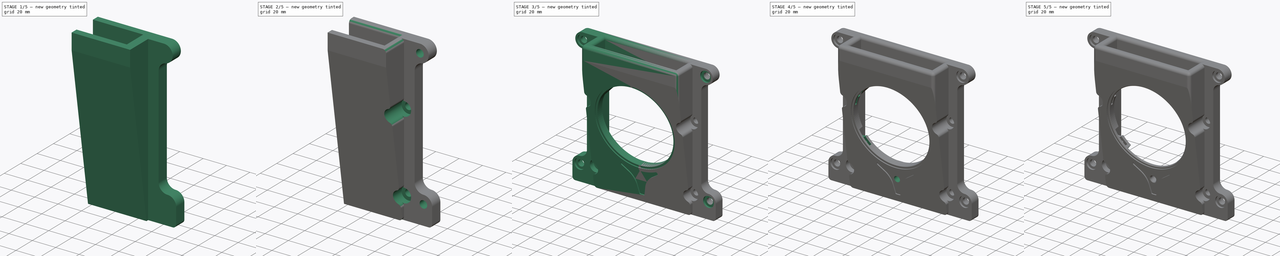
[diagram: build sequence overview — one tinted view per stage of 5, left to right]
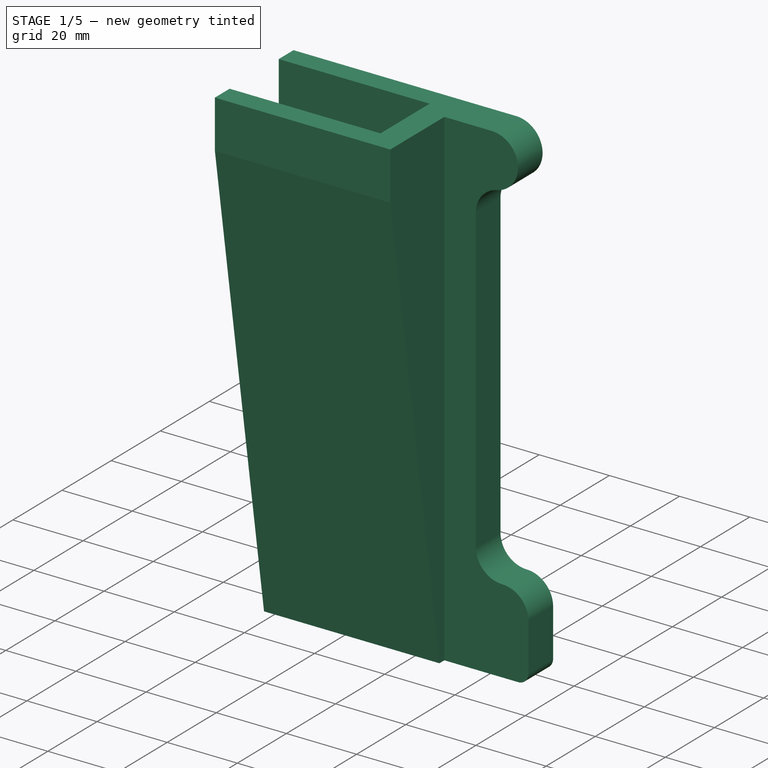
[diagram: stage 1 of 5 — iso view after this stage's code; geometry added in this stage tinted green]
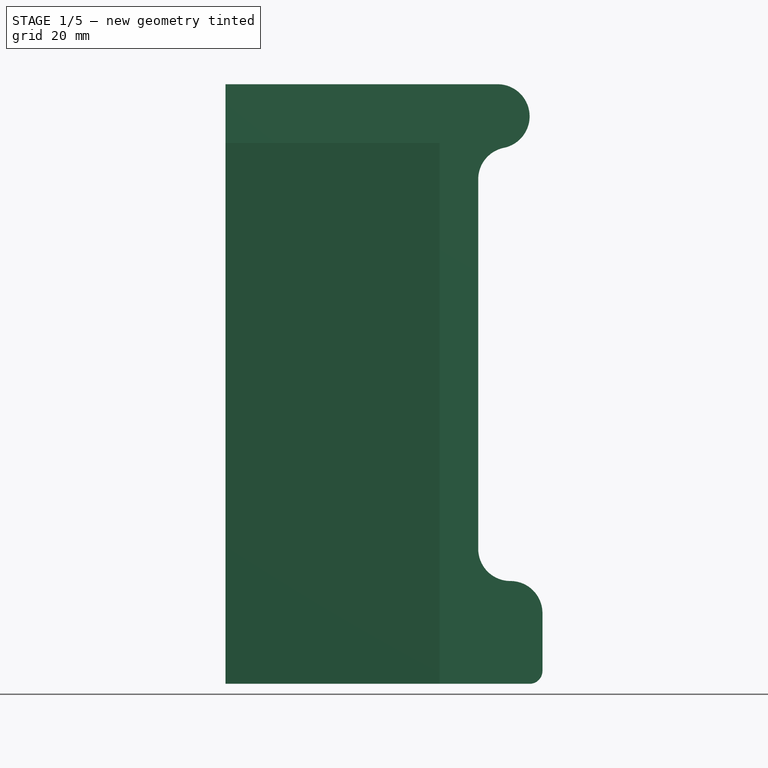
[diagram: stage 1 of 5 — front view after this stage's code; geometry added in this stage tinted green]
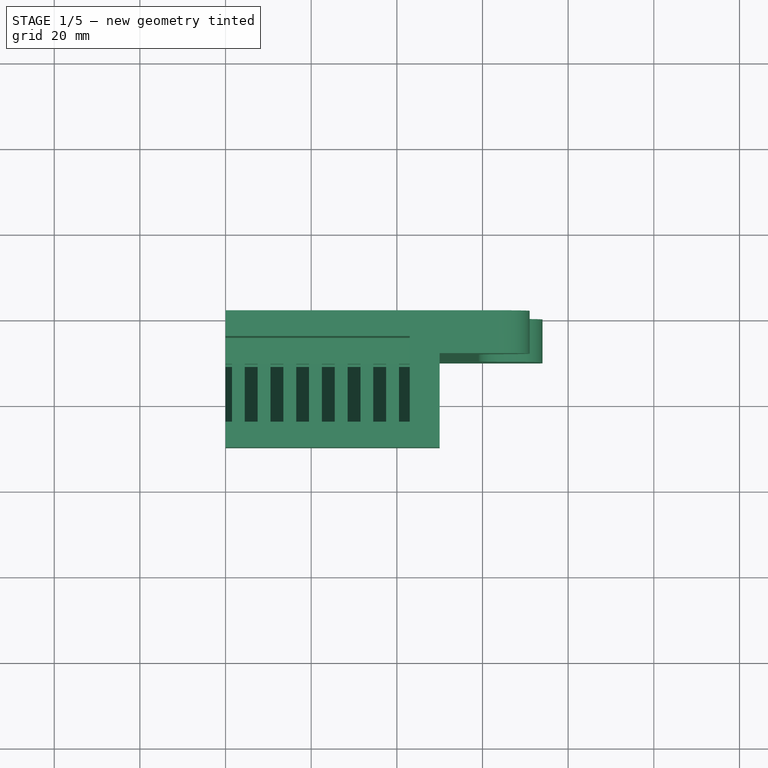
[diagram: stage 1 of 5 — top view after this stage's code; geometry added in this stage tinted green]
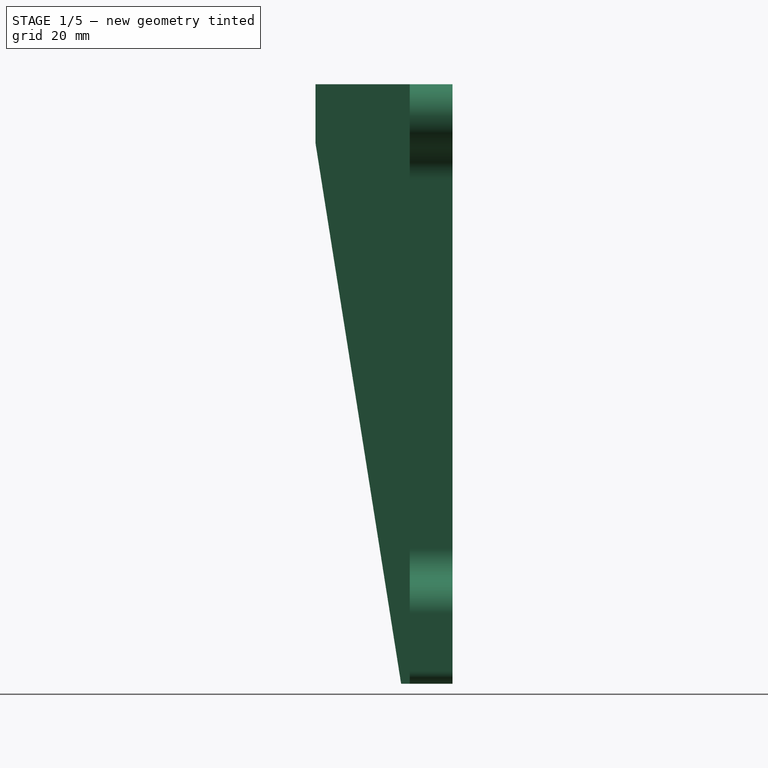
[diagram: stage 1 of 5 — right view after this stage's code; geometry added in this stage tinted green]
FCSTD DOCUMENT  (FreeCAD 1.0R39319 (Git))
Label: Stack_Module_Cover_forInserts
License: All rights reserved
LicenseURL: https://en.wikipedia.org/wiki/All_rights_reserved
objects: Sketcher::SketchObject×27, PartDesign::Pocket×19, PartDesign::Pad×7, PartDesign::CoordinateSystem×7, PartDesign::Fillet×6, PartDesign::PolarPattern×3, PartDesign::Chamfer×3, PartDesign::LinearPattern×2, PartDesign::Point×2, PartDesign::Mirrored×1, PartDesign::Line×1, PartDesign::Body×1, App::Part×1
note: 182 computed .brp shape members not serialized (recipe doc carries the construction recipe); baked Part::Feature solids carry a one-line shape summary decoded from their .brp

FEATURE [Sketcher::SketchObject] Sketch
  ArcFitTolerance = 1e-06
  AttachmentSupport = -> [XZ_Plane001]
  FullyConstrained = true
  MakeInternals = false
  MapMode = 5
  Placement = pos=(0,0,0) rot=(1,0,0;1.5708rad)
  sketch-geometry (9):
    g0: LineSegment StartX=0 StartY=-70 StartZ=0 EndX=74 EndY=-70 EndZ=0
    g1: LineSegment StartX=74 StartY=-70 StartZ=0 EndX=74 EndY=-53.5 EndZ=0
    g2: ArcOfCircle CenterX=66.5 CenterY=-53.5 CenterZ=0 NormalX=0 NormalY=0 NormalZ=1 AngleXU=0 Radius=7.5 StartAngle=0 EndAngle=1.5708
    g3: ArcOfCircle CenterX=66.5 CenterY=-38.5 CenterZ=0 NormalX=0 NormalY=0 NormalZ=1 AngleXU=0 Radius=7.5 StartAngle=3.14159 EndAngle=4.71239
    g4: LineSegment StartX=59 StartY=-38.5 StartZ=0 EndX=59 EndY=47.8031 EndZ=0
    g5: ArcOfCircle CenterX=66.5 CenterY=47.8031 CenterZ=0 NormalX=0 NormalY=0 NormalZ=1 AngleXU=0 Radius=7.5 StartAngle=1.77215 EndAngle=3.14159
    g6: ArcOfCircle CenterX=63.5 CenterY=62.5 CenterZ=0 NormalX=0 NormalY=0 NormalZ=1 AngleXU=0 Radius=7.5 StartAngle=4.91375 EndAngle=7.85398
    g7: LineSegment StartX=63.5 StartY=70 StartZ=0 EndX=0 EndY=70 EndZ=0
    g8: LineSegment StartX=0 StartY=70 StartZ=0 EndX=0 EndY=-70 EndZ=0
  constraints (26):
    c: PointOnObject(g0,g-2)
    c: Horizontal(g0)
    c: Coincident(g0,g1)
    c: Vertical(g1)
    c: Tangent(g1,g2) = -1.5708
    c: Tangent(g2,g3) = 1.5708
    c: Tangent(g3,g4) = 1.5708
    c: Tangent(g4,g5) = 1.5708
    c: Tangent(g5,g6) = 1.5708
    c: Tangent(g6,g7) = -1.5708
    c: Coincident(g7,g8)
    c: Coincident(g8,g0)
    c: Vertical(g8)
    c: Horizontal(g7)
    c: Vertical(g4)
    c: DistanceX(g0,g0) = 74
    c: Distance(g7,g0) = 140
    c: Distance(g2,g0) = 16.5
    c: Radius(g2) = 7.5
    c: Distance(g8,g4) = 59
    c: Radius(g6) = 7.5
    c: Distance(g6,g8) = 63.5
    c: Distance(g2,g8) = 66.5
    c: Distance(g-1,g0) = 70
    c: Radius(g3) = 7.5
    c: Radius(g5) = 7.5
FEATURE [PartDesign::Pad] Pad
  Direction = (0,-1,2e-16)
  Length = 10
  Length2 = 10
  Placement = pos=(0,0,0) rot=(1,0,0;1.5708rad)
  Profile = -> Sketch
  ReferenceAxis = -> Sketch [N_Axis]
  Refine = true
  Suppressed = false
  Type = 0
FEATURE [PartDesign::Fillet] Fillet
  Base = -> Pad [Edge2]
  BaseFeature = -> Pad
  Placement = pos=(0,0,0) rot=(1,0,0;1.5708rad)
  Radius = 3
  Refine = true
  SupportTransform = false
  Suppressed = false
  UseAllEdges = false
FEATURE [Sketcher::SketchObject] Sketch001
  ArcFitTolerance = 1e-06
  AttachmentSupport = -> [YZ_Plane001]
  ExternalGeometry = -> [Fillet]
  FullyConstrained = true
  MakeInternals = false
  MapMode = 5
  Placement = pos=(0,0,0) rot=(0.57735,0.57735,0.57735;2.0944rad)
  sketch-geometry (5):
    g0: LineSegment StartX=-10 StartY=70 StartZ=0 EndX=-32 EndY=70 EndZ=0
    g1: LineSegment StartX=-32 StartY=70 StartZ=0 EndX=-32 EndY=56.275 EndZ=0
    g2: LineSegment StartX=-32 StartY=56.275 StartZ=0 EndX=-12 EndY=-70 EndZ=0
    g3: LineSegment StartX=-12 StartY=-70 StartZ=0 EndX=-10 EndY=-70 EndZ=0
    g4: LineSegment StartX=-10 StartY=-70 StartZ=0 EndX=-10 EndY=70 EndZ=0
  constraints (13):
    c: Horizontal(g0)
    c: Coincident(g0,g1)
    c: Vertical(g1)
    c: Coincident(g1,g2)
    c: Coincident(g2,g3)
    c: Horizontal(g3)
    c: Coincident(g3,g4)
    c: Coincident(g4,g0)
    c: Coincident(g0,g-3)
    c: Coincident(g3,g-5)
    c: Distance(g3,g3) = 2
    c: Angle(g4,g2) = 0.15708
    c: Distance(g-2,g1) = 32
FEATURE [PartDesign::Pad] Pad001
  BaseFeature = -> Fillet
  Direction = (1,0,0)
  Length = 50
  Length2 = 10
  Placement = pos=(0,0,0) rot=(1,0,0;1.5708rad)
  Profile = -> Sketch001
  ReferenceAxis = -> Sketch001 [N_Axis]
  Refine = true
  Suppressed = false
  Type = 0
FEATURE [Sketcher::SketchObject] Sketch002
  ArcFitTolerance = 1e-06
  AttachmentSupport = -> [Pad001]
  FullyConstrained = true
  MakeInternals = false
  MapMode = 5
  Placement = pos=(0,0,0) rot=(0.707107,0,-0.707107;3.14159rad)
FEATURE [Sketcher::SketchObject] Sketch003
  ArcFitTolerance = 1e-06
  AttachmentSupport = -> [Pad001]
  ExternalGeometry = -> [Pad001]
  FullyConstrained = true
  MakeInternals = false
  MapMode = 5
  Placement = pos=(0,-3e-16,0) rot=(-1,0,0;1.5708rad)
  sketch-geometry (4):
    g0: LineSegment StartX=0 StartY=67 StartZ=0 EndX=0 EndY=60 EndZ=0
    g1: LineSegment StartX=0 StartY=60 StartZ=0 EndX=71 EndY=60 EndZ=0
    g2: LineSegment StartX=71 StartY=60 StartZ=0 EndX=71 EndY=67 EndZ=0
    g3: LineSegment StartX=71 StartY=67 StartZ=0 EndX=0 EndY=67 EndZ=0
  constraints (12):
    c: Coincident(g0,g1)
    c: Coincident(g1,g2)
    c: Coincident(g2,g3)
    c: Coincident(g3,g0)
    c: Vertical(g0)
    c: Vertical(g2)
    c: Horizontal(g1)
    c: Horizontal(g3)
    c: PointOnObject(g0,g-2)
    c: Distance(g-3,g3) = 3
    c: Distance(g3,g1) = 7
    c: Distance(g-4,g2) = 3
FEATURE [PartDesign::Pocket] Pocket
  BaseFeature = -> Pad001
  Direction = (0,-1,-2e-16)
  Length = 3
  Length2 = 5
  Placement = pos=(0,0,0) rot=(1,0,0;1.5708rad)
  Profile = -> Sketch003
  ReferenceAxis = -> Sketch003 [N_Axis]
  Refine = true
  Suppressed = false
  Type = 0
FEATURE [Sketcher::SketchObject] Sketch004
  ArcFitTolerance = 1e-06
  AttachmentSupport = -> [Pocket]
  ExternalGeometry = -> [Pocket]
  FullyConstrained = true
  MakeInternals = false
  MapMode = 5
  Placement = pos=(0,-3e-16,0) rot=(-1,0,0;1.5708rad)
  sketch-geometry (4):
    g0: LineSegment StartX=0 StartY=-63.5 StartZ=0 EndX=0 EndY=-67 EndZ=0
    g1: LineSegment StartX=0 StartY=-67 StartZ=0 EndX=56 EndY=-67 EndZ=0
    g2: LineSegment StartX=56 StartY=-67 StartZ=0 EndX=56 EndY=-63.5 EndZ=0
    g3: LineSegment StartX=56 StartY=-63.5 StartZ=0 EndX=0 EndY=-63.5 EndZ=0
  constraints (12):
    c: Coincident(g0,g1)
    c: Coincident(g1,g2)
    c: Coincident(g2,g3)
    c: Coincident(g3,g0)
    c: Vertical(g0)
    c: Vertical(g2)
    c: Horizontal(g1)
    c: Horizontal(g3)
    c: PointOnObject(g0,g-2)
    c: Distance(g-2,g2) = 56
    c: Distance(g3,g1) = 3.5
    c: Distance(g-3,g1) = 3
FEATURE [PartDesign::Pocket] Pocket001
  BaseFeature = -> Pocket
  Direction = (0,-1,-2e-16)
  Length = 3
  Length2 = 5
  Placement = pos=(0,0,0) rot=(1,0,0;1.5708rad)
  Profile = -> Sketch004
  ReferenceAxis = -> Sketch004 [N_Axis]
  Refine = true
  Suppressed = false
  Type = 0
FEATURE [Sketcher::SketchObject] Sketch005
  ArcFitTolerance = 1e-06
  AttachmentSupport = -> [Pocket001]
  ExternalGeometry = -> [Pocket001]
  FullyConstrained = true
  MakeInternals = false
  MapMode = 5
  Placement = pos=(0,0,0) rot=(0.707107,0,-0.707107;3.14159rad)
  sketch-geometry (10):
    g0: LineSegment StartX=-43.4641 StartY=6 StartZ=0 EndX=-70 EndY=6 EndZ=0
    g1: LineSegment StartX=-70 StartY=6 StartZ=0 EndX=-70 EndY=26 EndZ=0
    g2: LineSegment StartX=-70 StartY=26 StartZ=0 EndX=-64 EndY=26 EndZ=0
    g3: LineSegment StartX=-64 StartY=26 StartZ=0 EndX=-64 EndY=30.1861 EndZ=0
    g4: LineSegment StartX=-64 StartY=30.1861 StartZ=0 EndX=57 EndY=11.0216 EndZ=0
    g5: LineSegment StartX=57 StartY=11.0216 StartZ=0 EndX=57 EndY=0 EndZ=0
    g6: LineSegment StartX=57 StartY=0 StartZ=0 EndX=-34 EndY=0 EndZ=0
    g7: LineSegment StartX=-43.4641 StartY=6 StartZ=0 EndX=-40 EndY=12 EndZ=0
    g8: LineSegment StartX=-40 StartY=12 StartZ=0 EndX=-34 EndY=12 EndZ=0
    g9: LineSegment StartX=-34 StartY=12 StartZ=0 EndX=-34 EndY=0 EndZ=0
  constraints (30):
    c: PointOnObject(g6,g-1)
    c: Horizontal(g0)
    c: Coincident(g0,g1)
    c: Vertical(g1)
    c: Coincident(g1,g2)
    c: Horizontal(g2)
    c: Coincident(g2,g3)
    c: Vertical(g3)
    c: Coincident(g3,g4)
    c: Coincident(g4,g5)
    c: Vertical(g5)
    c: Coincident(g5,g6)
    c: Horizontal(g6)
    c: Distance(g-6,g5) = 3
    c: Distance(g4,g-3) = 3
    c: Parallel(g4,g-3)
    c: Distance(g-4,g3) = 6
    c: Distance(g-5,g2) = 6
    c: PointOnObject(g1,g-4)
    c: Distance(g0,g-7) = 3
    c: Coincident(g0,g7)
    c: Coincident(g7,g8)
    c: Horizontal(g8)
    c: Coincident(g8,g9)
    c: Coincident(g9,g6)
    c: Vertical(g9)
    c: Distance(g8,g8) = 6
    c: Distance(g8,g0) = 6
    c: Angle(g7,g9) = 0.523599
    c: Distance(g7,g1) = 30
FEATURE [PartDesign::Pocket] Pocket002
  BaseFeature = -> Pocket001
  Direction = (1,0,2e-16)
  Length = 0
  Length2 = 5
  Offset = -7
  Placement = pos=(0,0,0) rot=(1,0,0;1.5708rad)
  Profile = -> Sketch005
  ReferenceAxis = -> Sketch005 [N_Axis]
  Refine = true
  Suppressed = false
  Type = 3
  UpToFace = -> Pocket001 [Face5]
FEATURE [Sketcher::SketchObject] Sketch006
  ArcFitTolerance = 1e-06
  AttachmentSupport = -> [Pocket002]
  ExternalGeometry = -> [Pocket002]
  FullyConstrained = true
  MakeInternals = false
  MapMode = 5
  Placement = pos=(0,-12,2.6e-15) rot=(1,0,0;1.5708rad)
  sketch-geometry (4):
    g0: LineSegment StartX=1.5 StartY=40 StartZ=0 EndX=1.5 EndY=34 EndZ=0
    g1: LineSegment StartX=1.5 StartY=34 StartZ=0 EndX=4.5 EndY=34 EndZ=0
    g2: LineSegment StartX=4.5 StartY=34 StartZ=0 EndX=4.5 EndY=40 EndZ=0
    g3: LineSegment StartX=4.5 StartY=40 StartZ=0 EndX=1.5 EndY=40 EndZ=0
  constraints (12):
    c: Coincident(g0,g1)
    c: Coincident(g1,g2)
    c: Coincident(g2,g3)
    c: Coincident(g3,g0)
    c: Vertical(g0)
    c: Vertical(g2)
    c: Horizontal(g1)
    c: Horizontal(g3)
    c: Distance(g0,g-2) = 1.5
    c: Distance(g2,g0) = 3
    c: PointOnObject(g2,g-3)
    c: PointOnObject(g1,g-4)
FEATURE [PartDesign::Pad] Pad002
  BaseFeature = -> Pocket002
  Direction = (0,-1,2e-16)
  Length = 10
  Length2 = 10
  Placement = pos=(0,0,0) rot=(1,0,0;1.5708rad)
  Profile = -> Sketch006
  ReferenceAxis = -> Sketch006 [N_Axis]
  Refine = true
  Suppressed = false
  Type = 2
FEATURE [PartDesign::LinearPattern] LinearPattern
  BaseFeature = -> Pad002
  Direction = -> Sketch006 [H_Axis]
  Length = 36
  Mode = 1
  Occurrences = 7
  Offset = 6
  Originals = -> [Pad002]
  Placement = pos=(0,0,0) rot=(1,0,0;1.5708rad)
  Refine = true
  Suppressed = false
  TransformMode = 0
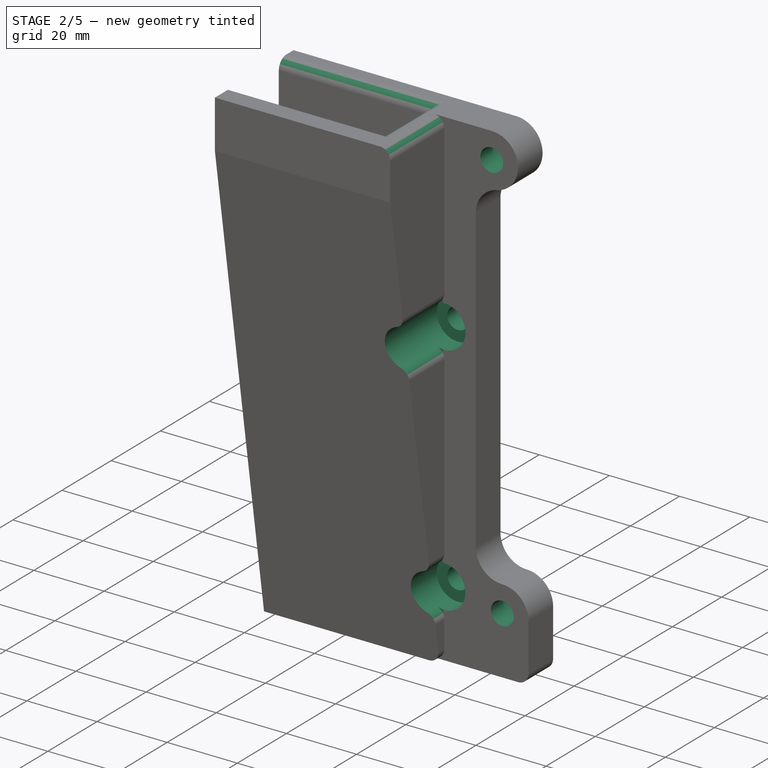
[diagram: stage 2 of 5 — iso view after this stage's code; geometry added in this stage tinted green]
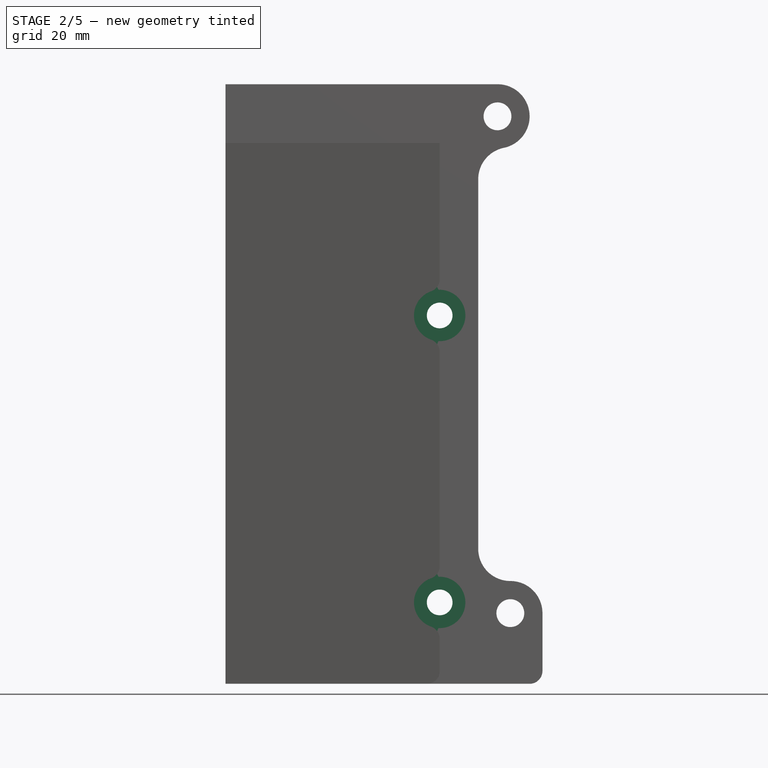
[diagram: stage 2 of 5 — front view after this stage's code; geometry added in this stage tinted green]
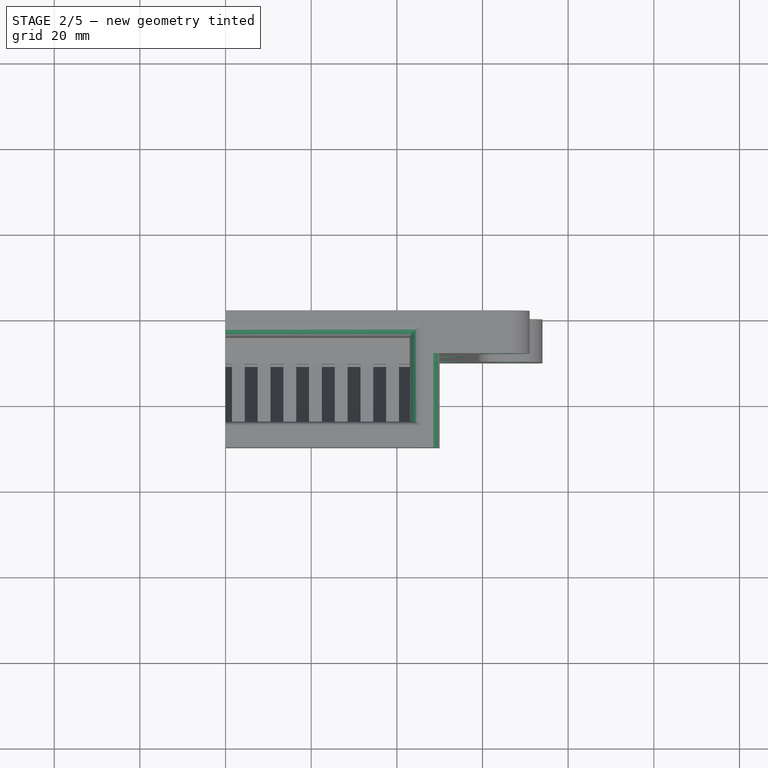
[diagram: stage 2 of 5 — top view after this stage's code; geometry added in this stage tinted green]
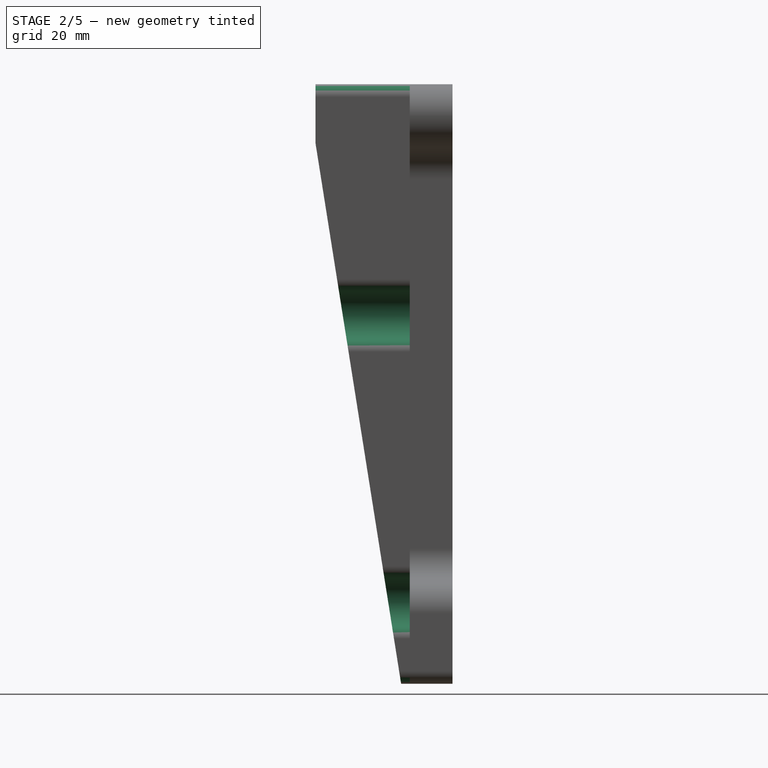
[diagram: stage 2 of 5 — right view after this stage's code; geometry added in this stage tinted green]
FEATURE [Sketcher::SketchObject] Sketch007
  ArcFitTolerance = 1e-06
  AttachmentSupport = -> [LinearPattern]
  ExternalGeometry = -> [LinearPattern]
  FullyConstrained = true
  MakeInternals = false
  MapMode = 5
  Placement = pos=(0,-10,0) rot=(1,0,0;1.5708rad)
  sketch-geometry (2):
    g0: Circle CenterX=63.5 CenterY=62.5 CenterZ=0 NormalX=0 NormalY=0 NormalZ=1 AngleXU=0 Radius=3.25
    g1: Circle CenterX=66.5 CenterY=-53.5 CenterZ=0 NormalX=0 NormalY=0 NormalZ=1 AngleXU=0 Radius=3.25
  constraints (4):
    c: Coincident(g0,g-4)
    c: Coincident(g1,g-3)
    c: Diameter(g1) = 6.5
    c: Diameter(g0) = 6.5
FEATURE [PartDesign::Pocket] Pocket003
  BaseFeature = -> LinearPattern
  Direction = (0,1,-2e-16)
  Length = 5
  Length2 = 5
  Placement = pos=(0,0,0) rot=(1,0,0;1.5708rad)
  Profile = -> Sketch007
  ReferenceAxis = -> Sketch007 [N_Axis]
  Refine = true
  Suppressed = false
  Type = 1
FEATURE [Sketcher::SketchObject] Sketch008
  ArcFitTolerance = 1e-06
  AttachmentSupport = -> [Pocket003]
  ExternalGeometry = -> [Pocket003]
  FullyConstrained = true
  MakeInternals = false
  MapMode = 5
  Placement = pos=(0,-3e-16,0) rot=(-1,0,0;1.5708rad)
  sketch-geometry (2):
    g0: Circle CenterX=63.5 CenterY=-62.5 CenterZ=0 NormalX=0 NormalY=0 NormalZ=1 AngleXU=0 Radius=4.5
    g1: Circle CenterX=66.5 CenterY=53.5 CenterZ=0 NormalX=0 NormalY=0 NormalZ=1 AngleXU=0 Radius=4.5
  constraints (4):
    c: Coincident(g0,g-4)
    c: Coincident(g1,g-3)
    c: Diameter(g1) = 9
    c: Diameter(g0) = 9
FEATURE [PartDesign::Pocket] Pocket004
  BaseFeature = -> Pocket003
  Direction = (0,-1,-2e-16)
  Length = 5
  Length2 = 5
  Placement = pos=(0,0,0) rot=(1,0,0;1.5708rad)
  Profile = -> Sketch008
  ReferenceAxis = -> Sketch008 [N_Axis]
  Refine = true
  Suppressed = false
  Type = 0
FEATURE [Sketcher::SketchObject] Sketch009
  ArcFitTolerance = 1e-06
  AttachmentSupport = -> [Pocket004]
  ExternalGeometry = -> [Pocket004]
  FullyConstrained = true
  MakeInternals = false
  MapMode = 5
  Placement = pos=(0,-3e-16,0) rot=(-1,0,0;1.5708rad)
  sketch-geometry (3):
    g0: Circle CenterX=50 CenterY=51 CenterZ=0 NormalX=0 NormalY=0 NormalZ=1 AngleXU=0 Radius=3
    g1: Circle CenterX=50 CenterY=-16 CenterZ=0 NormalX=0 NormalY=0 NormalZ=1 AngleXU=0 Radius=3
    g2: LineSegment [constr] StartX=50 StartY=51 StartZ=0 EndX=50 EndY=-16 EndZ=0
  constraints (8):
    c: Diameter(g1) = 6
    c: Diameter(g0) = 6
    c: Distance(g0,g-2) = 50
    c: Coincident(g2,g0)
    c: Coincident(g2,g1)
    c: Vertical(g2)
    c: DistanceY(g2,g2) = 67
    c: Distance(g0,g-3) = 19
FEATURE [PartDesign::Pocket] Pocket005
  BaseFeature = -> Pocket004
  Direction = (0,-1,-2e-16)
  Length = 5
  Length2 = 5
  Placement = pos=(0,0,0) rot=(1,0,0;1.5708rad)
  Profile = -> Sketch009
  ReferenceAxis = -> Sketch009 [N_Axis]
  Refine = true
  Suppressed = false
  Type = 1
FEATURE [Sketcher::SketchObject] Sketch010
  ArcFitTolerance = 1e-06
  AttachmentSupport = -> [Pocket005]
  ExternalGeometry = -> [Pocket005]
  FullyConstrained = true
  MakeInternals = false
  MapMode = 5
  Placement = pos=(0,-10,0) rot=(1,0,0;1.5708rad)
  sketch-geometry (2):
    g0: Circle CenterX=50 CenterY=16 CenterZ=0 NormalX=0 NormalY=0 NormalZ=1 AngleXU=0 Radius=6
    g1: Circle CenterX=50 CenterY=-51 CenterZ=0 NormalX=0 NormalY=0 NormalZ=1 AngleXU=0 Radius=6
  constraints (4):
    c: Coincident(g0,g-4)
    c: Coincident(g1,g-3)
    c: Diameter(g1) = 12
    c: Diameter(g0) = 12
FEATURE [PartDesign::Pocket] Pocket006
  BaseFeature = -> Pocket005
  Direction = (0,1,-2e-16)
  Length = 5.5
  Length2 = 30
  Midplane = true
  Placement = pos=(0,0,0) rot=(1,0,0;1.5708rad)
  Profile = -> Sketch010
  ReferenceAxis = -> Sketch010 [N_Axis]
  Refine = true
  Suppressed = false
  Type = 4
FEATURE [PartDesign::Fillet] Fillet001
  Base = -> Pocket006 [Edge24,Edge25,Edge28,Edge32,Edge35,Edge40]
  BaseFeature = -> Pocket006
  Placement = pos=(0,0,0) rot=(1,0,0;1.5708rad)
  Radius = 3
  Refine = true
  SupportTransform = false
  Suppressed = false
  UseAllEdges = false
FEATURE [PartDesign::Fillet] Fillet002
  Base = -> Fillet001 [Edge113]
  BaseFeature = -> Fillet001
  Placement = pos=(0,0,0) rot=(1,0,0;1.5708rad)
  Radius = 0.5
  Refine = true
  SupportTransform = false
  Suppressed = false
  UseAllEdges = false
FEATURE [PartDesign::Fillet] Fillet003
  Base = -> Fillet002 [Edge76,Edge50]
  BaseFeature = -> Fillet002
  Placement = pos=(0,0,0) rot=(1,0,0;1.5708rad)
  Radius = 1
  Refine = true
  SupportTransform = false
  Suppressed = false
  UseAllEdges = false
FEATURE [PartDesign::Fillet] Fillet004
  Base = -> Fillet003 [Edge63,Edge65]
  BaseFeature = -> Fillet003
  Placement = pos=(0,0,0) rot=(1,0,0;1.5708rad)
  Radius = 3
  Refine = true
  SupportTransform = false
  Suppressed = false
  UseAllEdges = false
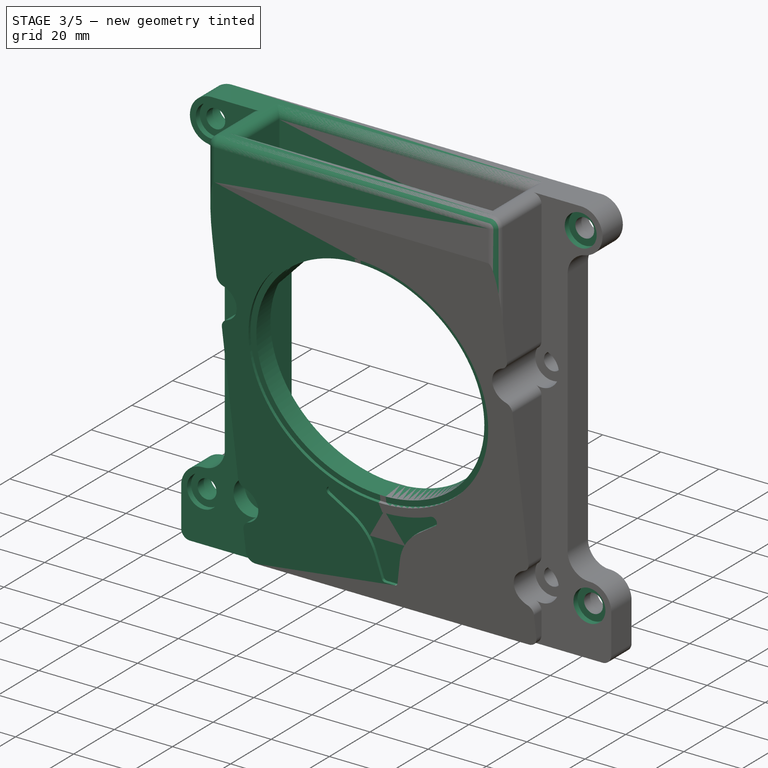
[diagram: stage 3 of 5 — iso view after this stage's code; geometry added in this stage tinted green]
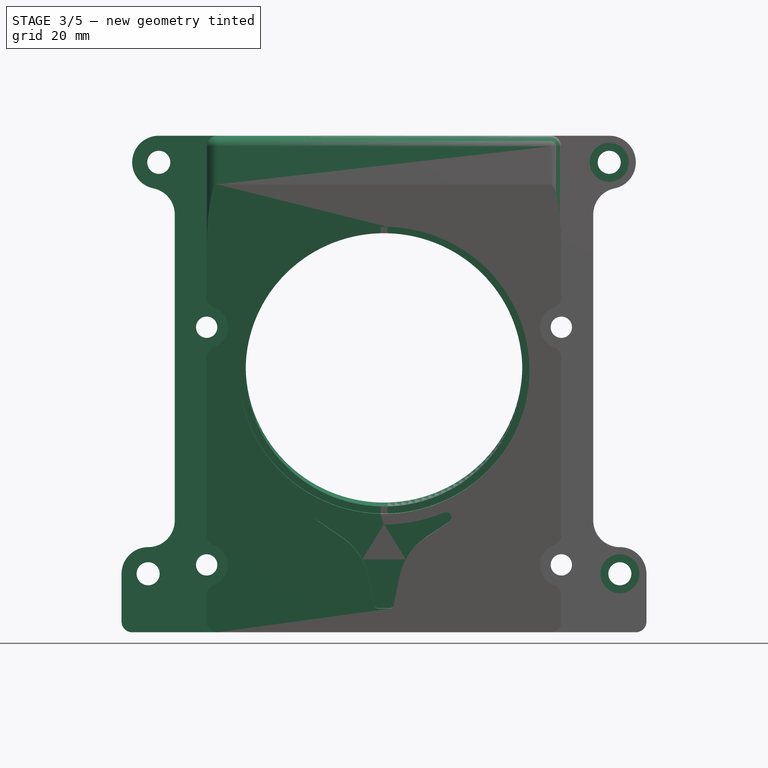
[diagram: stage 3 of 5 — front view after this stage's code; geometry added in this stage tinted green]
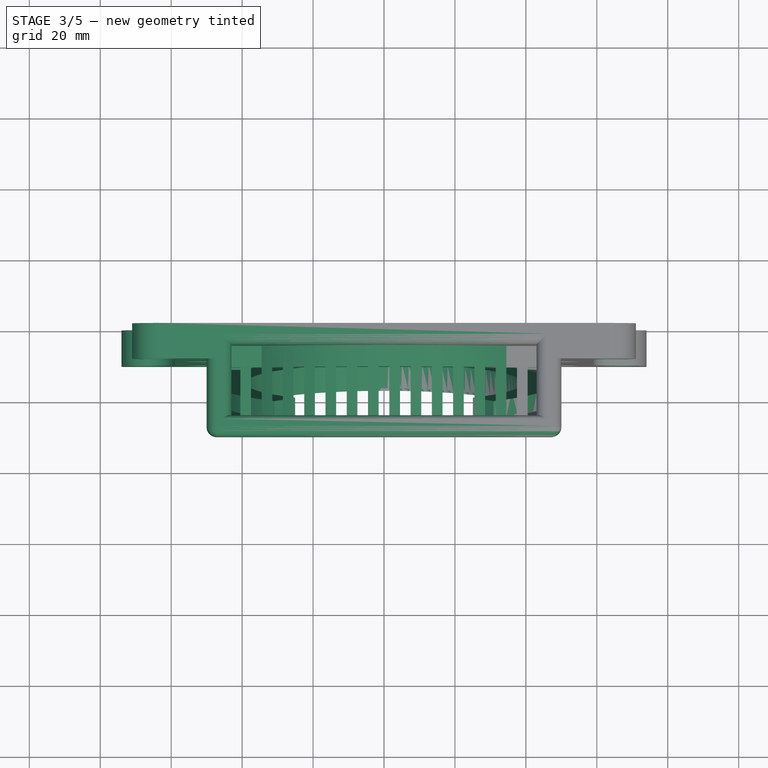
[diagram: stage 3 of 5 — top view after this stage's code; geometry added in this stage tinted green]
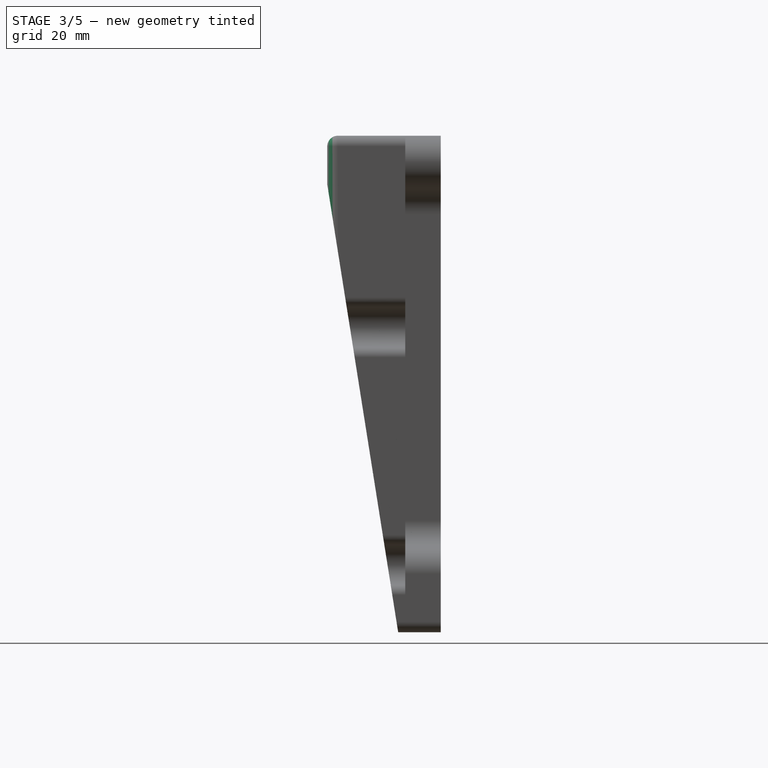
[diagram: stage 3 of 5 — right view after this stage's code; geometry added in this stage tinted green]
FEATURE [PartDesign::Fillet] Fillet005
  Base = -> Fillet004 [Edge36]
  BaseFeature = -> Fillet004
  Placement = pos=(0,0,0) rot=(1,0,0;1.5708rad)
  Radius = 3
  Refine = true
  SupportTransform = false
  Suppressed = false
  UseAllEdges = false
FEATURE [Sketcher::SketchObject] Sketch014
  ArcFitTolerance = 1e-06
  AttachmentSupport = -> [Pocket004]
  ExternalGeometry = -> [Pocket004]
  FullyConstrained = true
  MakeInternals = false
  MapMode = 5
  Placement = pos=(0,-10,0) rot=(1,0,0;1.5708rad)
  sketch-geometry (2):
    g0: Circle CenterX=63.5 CenterY=62.5 CenterZ=0 NormalX=0 NormalY=0 NormalZ=1 AngleXU=0 Radius=5.5
    g1: Circle CenterX=66.5 CenterY=-53.5 CenterZ=0 NormalX=0 NormalY=0 NormalZ=1 AngleXU=0 Radius=5.5
  constraints (4):
    c: Coincident(g0,g-3)
    c: Coincident(g1,g-4)
    c: Diameter(g1) = 11
    c: Diameter(g0) = 11
FEATURE [PartDesign::Pocket] Pocket007
  BaseFeature = -> Fillet005
  Direction = (0,1,-2e-16)
  Length = 2
  Length2 = 5
  Placement = pos=(0,0,0) rot=(1,0,0;1.5708rad)
  Profile = -> Sketch014
  ReferenceAxis = -> Sketch014 [N_Axis]
  Refine = true
  Suppressed = false
  Type = 0
FEATURE [PartDesign::Mirrored] Mirrored
  BaseFeature = -> Pocket007
  MirrorPlane = -> YZ_Plane001
  Placement = pos=(0,0,0) rot=(1,0,0;1.5708rad)
  Refine = true
  Suppressed = false
  TransformMode = 1
FEATURE [Sketcher::SketchObject] Sketch015
  ArcFitTolerance = 1e-06
  FullyConstrained = true
  MakeInternals = false
  MapMode = 5
  Placement = pos=(0,-19.5589,-3.09782) rot=(-1,0,0;1.41372rad)
  sketch-geometry (1):
    g0: Circle CenterX=0 CenterY=-7.5 CenterZ=0 NormalX=0 NormalY=0 NormalZ=1 AngleXU=0 Radius=39
  constraints (3):
    c: PointOnObject(g0,g-2)
    c: Diameter(g0) = 78
    c: Distance(g0,g-1) = 7.5
FEATURE [PartDesign::Pocket] Pocket012
  BaseFeature = -> Mirrored
  Direction = (0,-0.987688,-0.156434)
  Length = 2
  Length2 = 5
  Midplane = true
  Placement = pos=(0,0,0) rot=(1,0,0;1.5708rad)
  Profile = -> Sketch015
  ReferenceAxis = -> Sketch015 [N_Axis]
  Refine = true
  Suppressed = false
  Type = 1
FEATURE [Sketcher::SketchObject] Sketch016
  ArcFitTolerance = 1e-06
  AttachmentSupport = -> [Pocket012]
  ExternalGeometry = -> [Pocket012]
  FullyConstrained = true
  MakeInternals = false
  MapMode = 5
  Placement = pos=(0,-19.5589,-3.09782) rot=(-1,0,0;1.41372rad)
  sketch-geometry (4):
    g0: ArcOfCircle CenterX=0 CenterY=-7.5 CenterZ=0 NormalX=0 NormalY=0 NormalZ=1 AngleXU=0 Radius=39 StartAngle=3.62672 EndAngle=5.79806
    g1: ArcOfCircle CenterX=0 CenterY=-7.5 CenterZ=0 NormalX=0 NormalY=0 NormalZ=1 AngleXU=0 Radius=51 StartAngle=3.96943 EndAngle=5.45535
    g2: LineSegment StartX=-34.5 StartY=-45.06 StartZ=0 EndX=-34.5 EndY=-25.6865 EndZ=0
    g3: LineSegment StartX=34.5 StartY=-25.6865 StartZ=0 EndX=34.5 EndY=-45.06 EndZ=0
  constraints (12):
    c: Coincident(g2,g1)
    c: Coincident(g2,g0)
    c: Coincident(g3,g0)
    c: Coincident(g3,g1)
    c: Vertical(g2)
    c: Coincident(g0,g-5)
    c: Radius(g0) = 39
    c: Distance(g1,g0) = 12
    c: Coincident(g1,g0)
    c: Vertical(g3)
    c: PointOnObject(g-8,g3)
    c: PointOnObject(g-9,g2)
FEATURE [PartDesign::Pad] Pad003
  BaseFeature = -> Pocket012
  Direction = (0,0.987688,0.156434)
  Length = 10
  Length2 = 10
  Placement = pos=(0,0,0) rot=(1,0,0;1.5708rad)
  Profile = -> Sketch016
  ReferenceAxis = -> Sketch016 [N_Axis]
  Refine = true
  Suppressed = false
  Type = 3
  UpToFace = -> Pocket012 [Face28]
FEATURE [Sketcher::SketchObject] Sketch017
  ArcFitTolerance = 1e-06
  AttachmentSupport = -> [Pad003]
  ExternalGeometry = -> [Pad003]
  FullyConstrained = true
  MakeInternals = false
  MapMode = 5
  Placement = pos=(0,-19.5589,-3.09782) rot=(-1,0,0;1.41372rad)
  sketch-geometry (4):
    g0: LineSegment StartX=34.5 StartY=0 StartZ=0 EndX=34.5 EndY=-67.3488 EndZ=0
    g1: LineSegment StartX=34.5 StartY=-67.3488 StartZ=0 EndX=37.5 EndY=-67.3488 EndZ=0
    g2: LineSegment StartX=37.5 StartY=-67.3488 StartZ=0 EndX=37.5 EndY=0 EndZ=0
    g3: LineSegment StartX=37.5 StartY=0 StartZ=0 EndX=34.5 EndY=0 EndZ=0
  constraints (12):
    c: Coincident(g0,g1)
    c: Coincident(g1,g2)
    c: Coincident(g2,g3)
    c: Coincident(g3,g0)
    c: Vertical(g0)
    c: Vertical(g2)
    c: Horizontal(g1)
    c: Horizontal(g3)
    c: PointOnObject(g-1,g3)
    c: PointOnObject(g1,g-3)
    c: PointOnObject(g-5,g2)
    c: PointOnObject(g-4,g0)
FEATURE [PartDesign::Pocket] Pocket013
  BaseFeature = -> Pad003
  Direction = (0,-0.987688,-0.156434)
  Length = 0
  Length2 = 5
  Placement = pos=(0,0,0) rot=(1,0,0;1.5708rad)
  Profile = -> Sketch017
  ReferenceAxis = -> Sketch017 [N_Axis]
  Refine = true
  Suppressed = false
  Type = 3
  UpToFace = -> Pad003 [Face84]
FEATURE [PartDesign::LinearPattern] LinearPattern001
  BaseFeature = -> Pocket013
  Direction = -> X_Axis001
  Length = 66
  Mode = 1
  Occurrences = 12
  Offset = 6
  Originals = -> [Pocket013]
  Placement = pos=(0,0,0) rot=(1,0,0;1.5708rad)
  Refine = true
  Reversed = true
  Suppressed = false
  TransformMode = 0
FEATURE [Sketcher::SketchObject] Sketch019
  ArcFitTolerance = 1e-06
  AttachmentSupport = -> [LinearPattern001]
  ExternalGeometry = -> [LinearPattern001]
  FullyConstrained = true
  MakeInternals = false
  MapMode = 5
  Placement = pos=(0,-22.5219,-3.56712) rot=(1,0,0;1.72788rad)
  sketch-geometry (16):
    g0: Circle CenterX=0 CenterY=7.5 CenterZ=0 NormalX=0 NormalY=0 NormalZ=1 AngleXU=0 Radius=41
    g1: ArcOfCircle CenterX=0 CenterY=7.5 CenterZ=0 NormalX=0 NormalY=0 NormalZ=1 AngleXU=0 Radius=44 StartAngle=4.3176 EndAngle=5.10718
    g2: ArcOfCircle CenterX=22 CenterY=-55.0913 CenterZ=0 NormalX=0 NormalY=0 NormalZ=1 AngleXU=0 Radius=18 StartAngle=2.17527 EndAngle=2.9376
    g3: ArcOfCircle CenterX=-22 CenterY=-55.0913 CenterZ=0 NormalX=0 NormalY=0 NormalZ=1 AngleXU=0 Radius=18 StartAngle=0.20399 EndAngle=0.966323
    g4: LineSegment StartX=-4.37321 StartY=-51.4449 StartZ=0 EndX=-2.66496 EndY=-59.7026 EndZ=0
    g5: LineSegment StartX=-1.68569 StartY=-60.5 StartZ=0 EndX=1.68569 EndY=-60.5 EndZ=0
    g6: LineSegment StartX=2.66496 StartY=-59.7026 StartZ=0 EndX=4.37321 EndY=-51.4449 EndZ=0
    g7: LineSegment [constr] StartX=0 StartY=-60.5 StartZ=0 EndX=0 EndY=-36.5 EndZ=0
    g8: ArcOfCircle CenterX=1.68569 CenterY=-59.5 CenterZ=0 NormalX=0 NormalY=0 NormalZ=1 AngleXU=0 Radius=1 StartAngle=4.71239 EndAngle=6.0792
    g9: GeomPoint [constr] X=2.5 Y=-60.5 Z=0
    g10: ArcOfCircle CenterX=-1.68569 CenterY=-59.5 CenterZ=0 NormalX=0 NormalY=0 NormalZ=1 AngleXU=0 Radius=1 StartAngle=3.34558 EndAngle=4.71239
    g11: GeomPoint [constr] X=-2.5 Y=-60.5 Z=0
    g12: LineSegment StartX=11.7701 StartY=-40.2808 StartZ=0 EndX=18.3525 EndY=-35.7342 EndZ=0
    g13: ArcOfCircle CenterX=17.5 CenterY=-34.5 CenterZ=0 NormalX=0 NormalY=0 NormalZ=1 AngleXU=0 Radius=1.5 StartAngle=5.31686 EndAngle=8.24877
    g14: LineSegment StartX=-11.7701 StartY=-40.2808 StartZ=0 EndX=-18.3525 EndY=-35.7342 EndZ=0
    g15: ArcOfCircle CenterX=-17.5 CenterY=-34.5 CenterZ=0 NormalX=0 NormalY=0 NormalZ=1 AngleXU=0 Radius=1.5 StartAngle=1.17601 EndAngle=4.10792
  constraints (39):
    c: Diameter(g0) = 82
    c: Tangent(g3,g4) = 1.5708
    c: Horizontal(g5)
    c: Tangent(g6,g2) = 1.5708
    c: Symmetric(g11,g9,g7)
    c: PointOnObject(g7,g1)
    c: Vertical(g7)
    c: Coincident(g1,g0)
    c: Radius(g1) = 44
    c: Distance(g0,g5) = 68
    c: Distance(g11,g9) = 5
    c: Radius(g3) = 18
    c: Radius(g2) = 18
    c: Distance(g3,g7) = 22
    c: Distance(g2,g7) = 22
    c: PointOnObject(g9,g5)
    c: PointOnObject(g9,g6)
    c: Tangent(g5,g8) = -1.5708
    c: Tangent(g6,g8) = -1.5708
    c: PointOnObject(g11,g4)
    c: PointOnObject(g11,g5)
    c: Tangent(g4,g10) = -1.5708
    c: Tangent(g5,g10) = -1.5708
    c: Radius(g10) = 1
    c: Radius(g8) = 1
    c: Tangent(g13,g1) = 1.5708
    c: Tangent(g13,g12) = -1.5708
    c: Tangent(g12,g2) = 1.5708
    c: Radius(g13) = 1.5
    c: Distance(g12,g12) = 8
    c: Distance(g13,g7) = 17.5
    c: Tangent(g14,g3) = -1.5708
    c: Tangent(g15,g1) = 1.5708
    c: Tangent(g15,g14) = 1.5708
    c: Radius(g15) = 1.5
    c: Distance(g14,g14) = 8
    c: Distance(g15,g7) = 17.5
    c: Coincident(g0,g-3)
    c: PointOnObject(g7,g-2)
FEATURE [PartDesign::Pocket] Pocket014
  BaseFeature = -> LinearPattern001
  Direction = (0,0.987688,0.156434)
  Length = 1
  Length2 = 5
  Placement = pos=(0,0,0) rot=(1,0,0;1.5708rad)
  Profile = -> Sketch019
  ReferenceAxis = -> Sketch019 [N_Axis]
  Refine = true
  Suppressed = false
  Type = 0
FEATURE [Sketcher::SketchObject] Sketch020
  ArcFitTolerance = 1e-06
  AttachmentSupport = -> [Pocket014]
  ExternalGeometry = -> [Pocket014]
  FullyConstrained = true
  MakeInternals = false
  MapMode = 5
  Placement = pos=(-3e-15,-19.5589,-3.09782) rot=(-1,0,0;1.41372rad)
  sketch-geometry (8):
    g0: ArcOfCircle CenterX=2.7e-15 CenterY=-7.5 CenterZ=0 NormalX=0 NormalY=0 NormalZ=1 AngleXU=0 Radius=39 StartAngle=5.41052 EndAngle=10.2974
    g1: ArcOfCircle CenterX=2.7e-15 CenterY=-7.5 CenterZ=0 NormalX=0 NormalY=0 NormalZ=1 AngleXU=0 Radius=48 StartAngle=5.41052 EndAngle=5.82269
    g2: LineSegment StartX=-30.8538 StartY=-44.2701 StartZ=0 EndX=-25.0687 EndY=-37.3757 EndZ=0
    g3: LineSegment StartX=30.8538 StartY=-44.2701 StartZ=0 EndX=25.0687 EndY=-37.3757 EndZ=0
    g4: LineSegment StartX=-43 StartY=-28.8307 StartZ=0 EndX=-43 EndY=13.8307 EndZ=0
    g5: LineSegment StartX=43 StartY=13.8307 StartZ=0 EndX=43 EndY=-28.8307 EndZ=0
    g6: ArcOfCircle CenterX=2.7e-15 CenterY=-7.5 CenterZ=0 NormalX=0 NormalY=0 NormalZ=1 AngleXU=0 Radius=48 StartAngle=3.60209 EndAngle=4.01426
    g7: ArcOfCircle CenterX=2.7e-15 CenterY=-7.5 CenterZ=0 NormalX=0 NormalY=0 NormalZ=1 AngleXU=0 Radius=48 StartAngle=0.460493 EndAngle=2.6811
  constraints (24):
    c: Coincident(g0,g-3)
    c: Coincident(g1,g0)
    c: Coincident(g2,g6)
    c: Coincident(g2,g0)
    c: Coincident(g3,g1)
    c: Coincident(g3,g0)
    c: Distance(g0,g1) = 9
    c: PointOnObject(g4,g6)
    c: Vertical(g4)
    c: Vertical(g5)
    c: PointOnObject(g4,g-7)
    c: PointOnObject(g5,g-6)
    c: Equal(g1,g6)
    c: Coincident(g1,g6)
    c: Coincident(g1,g5)
    c: Coincident(g6,g4)
    c: Coincident(g7,g4)
    c: Coincident(g7,g5)
    c: Coincident(g7,g0)
    c: PointOnObject(g0,g-3)
    c: PointOnObject(g0,g2)
    c: PointOnObject(g0,g3)
    c: Angle(g2,g3) = 1.39626
    c: Angle(g2,g-2) = 0.698132
FEATURE [PartDesign::Pad] Pad004
  BaseFeature = -> Pocket014
  Direction = (0,0.987688,0.156434)
  Length = 5
  Length2 = 10
  Placement = pos=(0,0,0) rot=(1,0,0;1.5708rad)
  Profile = -> Sketch020
  ReferenceAxis = -> Sketch020 [N_Axis]
  Refine = true
  Suppressed = false
  Type = 0
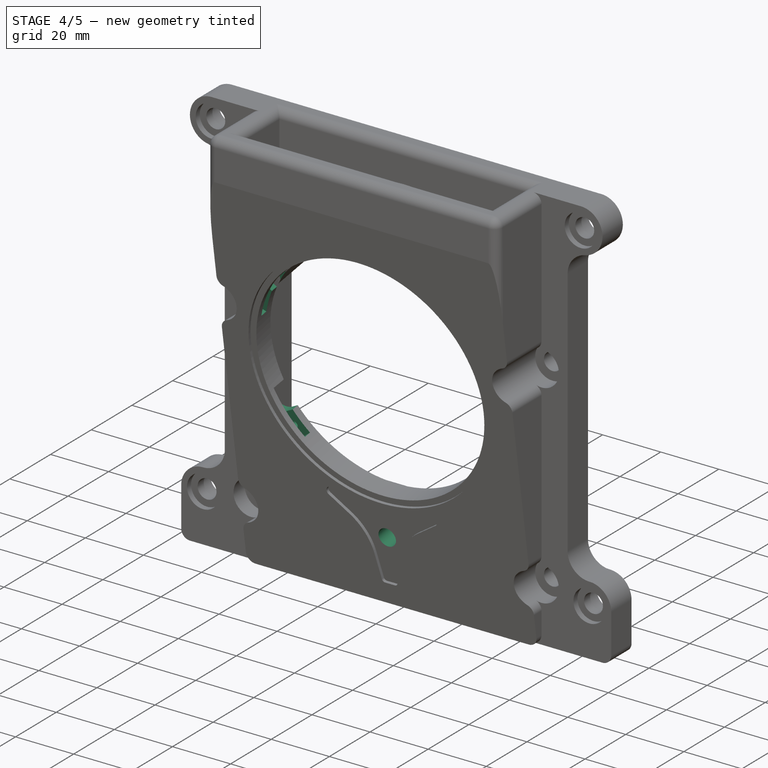
[diagram: stage 4 of 5 — iso view after this stage's code; geometry added in this stage tinted green]
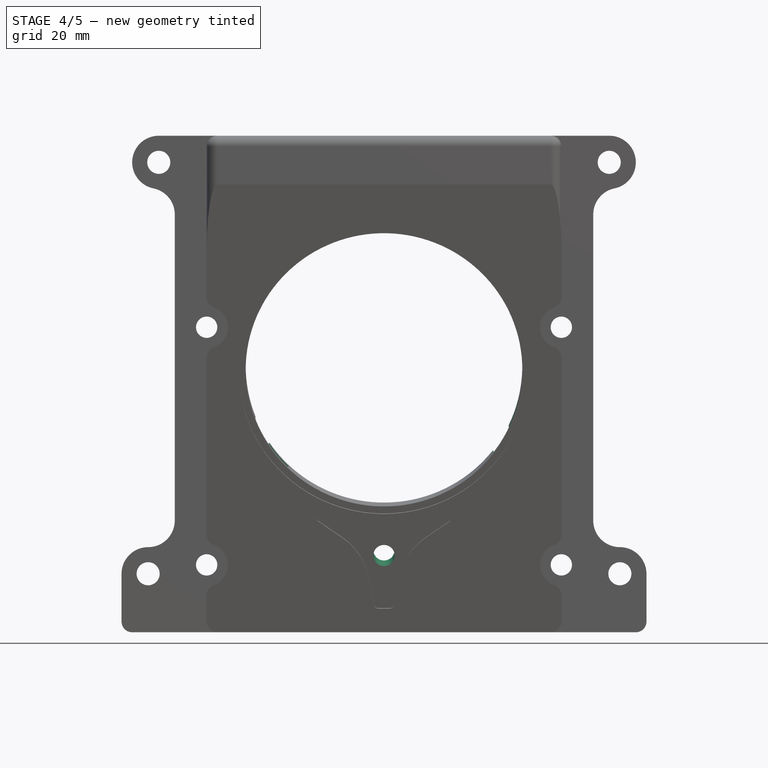
[diagram: stage 4 of 5 — front view after this stage's code; geometry added in this stage tinted green]
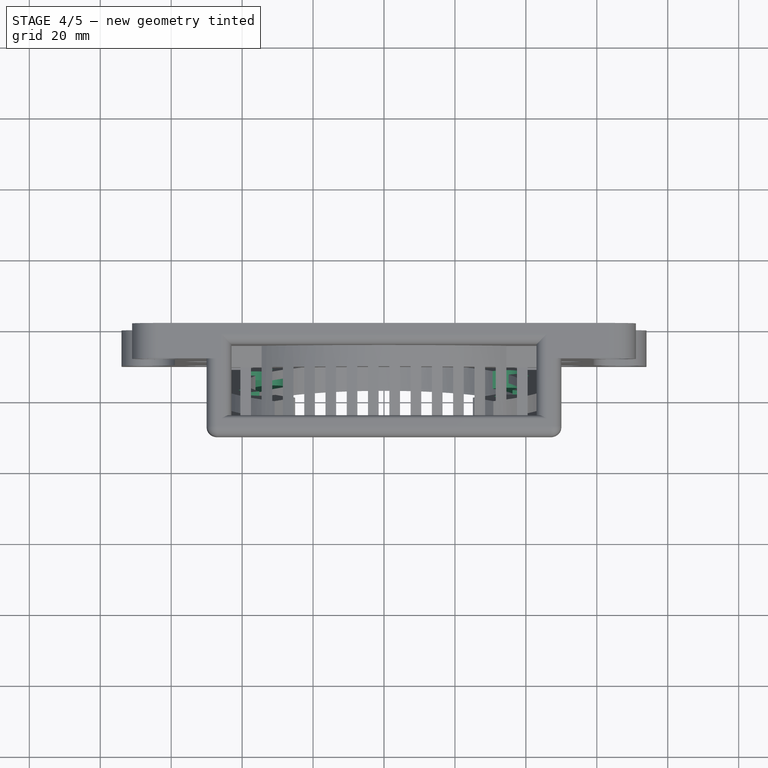
[diagram: stage 4 of 5 — top view after this stage's code; geometry added in this stage tinted green]
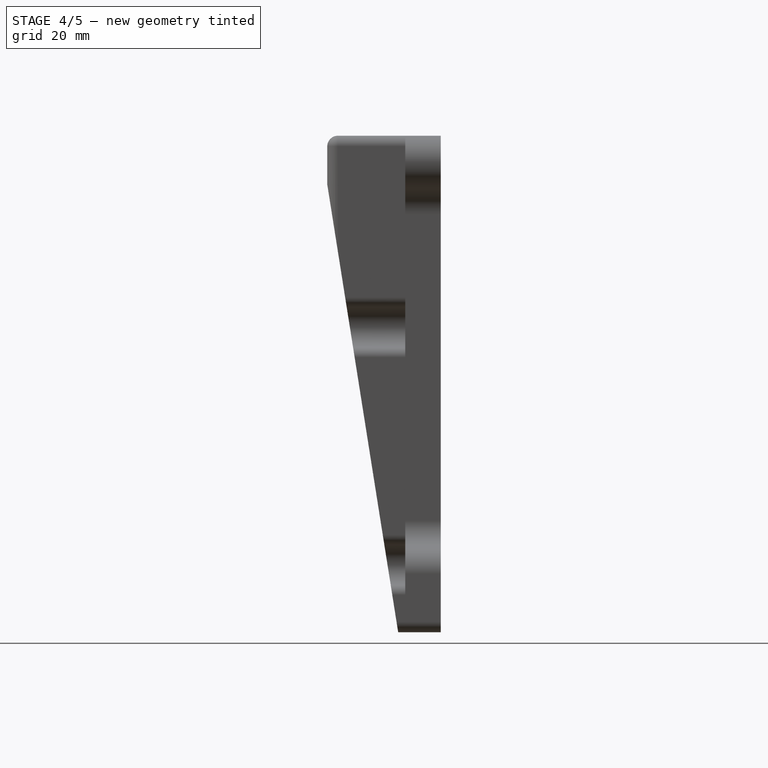
[diagram: stage 4 of 5 — right view after this stage's code; geometry added in this stage tinted green]
FEATURE [Sketcher::SketchObject] Sketch028
  ArcFitTolerance = 1e-06
  AttachmentSupport = -> [Pad004]
  ExternalGeometry = -> [Pad004]
  FullyConstrained = true
  MakeInternals = false
  MapMode = 5
  Placement = pos=(0,-14.6204,-2.31565) rot=(-1,0,0;1.41372rad)
  sketch-geometry (5):
    g0: ArcOfCircle CenterX=2e-16 CenterY=-7.5 CenterZ=0 NormalX=0 NormalY=0 NormalZ=1 AngleXU=0 Radius=39 StartAngle=0.449314 EndAngle=0.667697
    g1: LineSegment StartX=30.6247 StartY=16.648 StartZ=0 EndX=32.5178 EndY=17.8309 EndZ=0
    g2: ArcOfCircle CenterX=34.77 CenterY=14.2267 CenterZ=0 NormalX=0 NormalY=0 NormalZ=1 AngleXU=0 Radius=4.25 StartAngle=5.27089 EndAngle=8.41249
    g3: LineSegment StartX=37.0221 StartY=10.6225 StartZ=0 EndX=35.1291 EndY=9.43957 EndZ=0
    g4: LineSegment [constr] StartX=34.77 StartY=14.2267 StartZ=0 EndX=33.0739 EndY=13.1669 EndZ=0
  constraints (14):
    c: Coincident(g0,g1)
    c: Tangent(g1,g2) = 1.5708
    c: Tangent(g2,g3) = 1.5708
    c: Coincident(g4,g2)
    c: PointOnObject(g4,g0)
    c: Coincident(g0,g3)
    c: PointOnObject(g0,g4)
    c: Distance(g4,g4) = 2
    c: Parallel(g4,g1)
    c: Parallel(g3,g1)
    c: Radius(g2) = 4.25
    c: Angle(g-1,g4) = 0.558505
    c: PointOnObject(g4,g-3)
    c: Coincident(g0,g-3)
FEATURE [PartDesign::Pocket] Pocket015
  BaseFeature = -> Pad004
  Direction = (0,-0.987688,-0.156434)
  Length = 2.5
  Length2 = 5
  Placement = pos=(0,0,0) rot=(1,0,0;1.5708rad)
  Profile = -> Sketch028
  ReferenceAxis = -> Sketch028 [N_Axis]
  Refine = true
  Suppressed = false
  Type = 0
FEATURE [Sketcher::SketchObject] Sketch029
  ArcFitTolerance = 1e-06
  AttachmentSupport = -> [Pocket015]
  ExternalGeometry = -> [Pocket015]
  FullyConstrained = true
  MakeInternals = false
  MapMode = 5
  Placement = pos=(0,-17.0896,-2.70673) rot=(-1,0,0;1.41372rad)
  sketch-geometry (8):
    g0: ArcOfCircle CenterX=0 CenterY=-7.5 CenterZ=0 NormalX=0 NormalY=0 NormalZ=1 AngleXU=0 Radius=39 StartAngle=0.239875 EndAngle=0.667697
    g1: LineSegment StartX=30.6247 StartY=16.648 StartZ=0 EndX=32.5178 EndY=17.8309 EndZ=0
    g2: LineSegment StartX=37.8833 StartY=1.76565 StartZ=0 EndX=39.981 EndY=2.52913 EndZ=0
    g3: ArcOfCircle CenterX=38.5274 CenterY=6.52283 CenterZ=0 NormalX=0 NormalY=0 NormalZ=1 AngleXU=0 Radius=4.25 StartAngle=5.06145 EndAngle=6.63225
    g4: ArcOfCircle CenterX=0 CenterY=-7.5 CenterZ=0 NormalX=0 NormalY=0 NormalZ=1 AngleXU=0 Radius=45.25 StartAngle=0.349066 EndAngle=0.558505
    g5: ArcOfCircle CenterX=34.77 CenterY=14.2267 CenterZ=0 NormalX=0 NormalY=0 NormalZ=1 AngleXU=0 Radius=4.25 StartAngle=0.558505 EndAngle=2.1293
    g6: LineSegment [constr] StartX=38.3742 StartY=16.4788 StartZ=0 EndX=34.77 EndY=14.2267 EndZ=0
    g7: LineSegment [constr] StartX=42.5211 StartY=7.97641 StartZ=0 EndX=38.5274 EndY=6.52283 EndZ=0
  constraints (18):
    c: Coincident(g1,g0)
    c: Coincident(g2,g0)
    c: Tangent(g5,g1) = 1.5708
    c: Tangent(g3,g2) = -1.5708
    c: Tangent(g4,g3) = -1.5708
    c: Tangent(g5,g4) = -1.5708
    c: Coincident(g0,g-5)
    c: Coincident(g5,g-4)
    c: Coincident(g0,g-3)
    c: Coincident(g4,g0)
    c: PointOnObject(g4,g-4)
    c: Coincident(g6,g4)
    c: Coincident(g6,g5)
    c: Coincident(g7,g3)
    c: Coincident(g7,g3)
    c: Radius(g3) = 4.25
    c: Parallel(g2,g7)
    c: Angle(g7,g6) = 0.20944
FEATURE [PartDesign::Pocket] Pocket016
  BaseFeature = -> Pocket015
  Direction = (0,-0.987688,-0.156434)
  Length = 0
  Length2 = 5
  Placement = pos=(0,0,0) rot=(1,0,0;1.5708rad)
  Profile = -> Sketch029
  ReferenceAxis = -> Sketch029 [N_Axis]
  Refine = true
  Suppressed = false
  Type = 3
  UpToFace = -> Pocket015 [Face57]
FEATURE [PartDesign::Point] DatumPoint
  AttacherType = Attacher::AttachEnginePoint
  AttachmentSupport = -> [Pocket016]
  MapMode = 36
  Placement = pos=(-2.7e-15,-15.7937,5.09201) rot=(0.220642,0.972348,0.076525;0.685251rad)
FEATURE [PartDesign::Point] DatumPoint001
  AttacherType = Attacher::AttachEnginePoint
  AttachmentSupport = -> [Pocket016]
  MapMode = 36
  Placement = pos=(-1.42e-14,-22.7075,3.99697) rot=(1,0,0;0.15708rad)
FEATURE [PartDesign::Line] DatumLine
  AttacherType = Attacher::AttachEngineLine
  AttachmentSupport = -> [DatumPoint,DatumPoint001]
  Length = 20
  MapMode = 29
  Placement = pos=(-2.7e-15,-15.7937,5.09201) rot=(1,0,0;1.72788rad)
  ResizeMode = 0
FEATURE [PartDesign::PolarPattern] PolarPattern
  Angle = 360
  Axis = -> DatumLine
  BaseFeature = -> Pocket016
  Mode = 1
  Occurrences = 2
  Offset = 120
  Originals = -> [Pocket015,Pocket016]
  Placement = pos=(0,0,0) rot=(1,0,0;1.5708rad)
  Refine = true
  Reversed = true
  Suppressed = false
  TransformMode = 0
FEATURE [PartDesign::PolarPattern] PolarPattern001
  Angle = 360
  Axis = -> DatumLine
  BaseFeature = -> PolarPattern
  Mode = 1
  Occurrences = 2
  Offset = 180
  Originals = -> [Pocket015,Pocket016]
  Placement = pos=(0,0,0) rot=(1,0,0;1.5708rad)
  Refine = true
  Reversed = true
  Suppressed = false
  TransformMode = 0
FEATURE [PartDesign::PolarPattern] PolarPattern002
  Angle = 360
  Axis = -> DatumLine
  BaseFeature = -> PolarPattern001
  Mode = 1
  Occurrences = 2
  Offset = 60
  Originals = -> [Pocket015,Pocket016]
  Placement = pos=(0,0,0) rot=(1,0,0;1.5708rad)
  Refine = true
  Suppressed = false
  TransformMode = 0
FEATURE [Sketcher::SketchObject] Sketch030
  ArcFitTolerance = 1e-06
  AttachmentSupport = -> [PolarPattern002]
  ExternalGeometry = -> [PolarPattern002]
  FullyConstrained = true
  MakeInternals = false
  MapMode = 5
  Placement = pos=(0,-14.6204,-2.31565) rot=(-1,0,0;1.41372rad)
  sketch-geometry (10):
    g0: Circle [constr] CenterX=0 CenterY=-7.5 CenterZ=0 NormalX=0 NormalY=0 NormalZ=1 AngleXU=0 Radius=42.25
    g1: LineSegment [constr] StartX=34.77 StartY=14.2267 StartZ=0 EndX=0 EndY=-7.5 EndZ=0
    g2: Circle CenterX=39.702 CenterY=6.95035 CenterZ=0 NormalX=0 NormalY=0 NormalZ=1 AngleXU=0 Radius=1.25
    g3: Circle CenterX=32.3654 CenterY=-34.6578 CenterZ=0 NormalX=0 NormalY=0 NormalZ=1 AngleXU=0 Radius=1.25
    g4: Circle CenterX=-39.702 CenterY=-21.9504 CenterZ=0 NormalX=0 NormalY=0 NormalZ=1 AngleXU=0 Radius=1.25
    g5: Circle CenterX=-32.3654 CenterY=19.6578 CenterZ=0 NormalX=0 NormalY=0 NormalZ=1 AngleXU=0 Radius=1.25
    g6: LineSegment [constr] StartX=0 StartY=-7.5 StartZ=0 EndX=39.702 EndY=6.95035 EndZ=0
    g7: LineSegment [constr] StartX=0 StartY=-7.5 StartZ=0 EndX=32.3654 EndY=-34.6578 EndZ=0
    g8: LineSegment [constr] StartX=-39.702 StartY=-21.9504 StartZ=0 EndX=0 EndY=-7.5 EndZ=0
    g9: LineSegment [constr] StartX=-32.3654 StartY=19.6578 StartZ=0 EndX=0 EndY=-7.5 EndZ=0
  constraints (24):
    c: Coincident(g0,g-3)
    c: Distance(g-4,g0) = 1.25
    c: Coincident(g1,g-4)
    c: Coincident(g1,g0)
    c: PointOnObject(g2,g0)
    c: PointOnObject(g3,g0)
    c: PointOnObject(g4,g0)
    c: PointOnObject(g5,g0)
    c: Coincident(g6,g0)
    c: Coincident(g6,g2)
    c: Coincident(g7,g0)
    c: Coincident(g7,g3)
    c: Coincident(g8,g4)
    c: Coincident(g8,g0)
    c: Coincident(g9,g5)
    c: Coincident(g9,g0)
    c: Diameter(g5) = 2.5
    c: Diameter(g4) = 2.5
    c: Diameter(g2) = 2.5
    c: Diameter(g3) = 2.5
    c: Angle(g6,g1) = 0.20944
    c: Angle(g7,g6) = 1.0472
    c: Angle(g9,g8) = 1.0472
    c: Angle(g8,g6) = 3.14159
FEATURE [PartDesign::Pocket] Pocket017
  BaseFeature = -> PolarPattern002
  Direction = (0,-0.987688,-0.156434)
  Length = 3
  Length2 = 5
  Placement = pos=(0,0,0) rot=(1,0,0;1.5708rad)
  Profile = -> Sketch030
  ReferenceAxis = -> Sketch030 [N_Axis]
  Refine = true
  Suppressed = false
  Type = 0
FEATURE [Sketcher::SketchObject] Sketch031
  ArcFitTolerance = 1e-06
  AttachmentSupport = -> [Pocket017]
  ExternalGeometry = -> [Pocket017]
  FullyConstrained = true
  MakeInternals = false
  MapMode = 5
  Placement = pos=(0,-21.5342,-3.41069) rot=(1,0,0;1.72788rad)
  sketch-geometry (1):
    g0: Circle CenterX=0 CenterY=-45.5 CenterZ=0 NormalX=0 NormalY=0 NormalZ=1 AngleXU=0 Radius=4.5
  constraints (3):
    c: PointOnObject(g0,g-2)
    c: Diameter(g0) = 9
    c: Distance(g0,g-3) = 15
FEATURE [PartDesign::Pad] Pad005
  BaseFeature = -> Pocket017
  Direction = (0,-0.987688,-0.156434)
  Length = 10
  Length2 = 10
  Placement = pos=(0,0,0) rot=(1,0,0;1.5708rad)
  Profile = -> Sketch031
  ReferenceAxis = -> Sketch031 [N_Axis]
  Refine = true
  Reversed = true
  Suppressed = false
  Type = 0
FEATURE [Sketcher::SketchObject] Sketch032
  ArcFitTolerance = 1e-06
  AttachmentSupport = -> [Pad005]
  ExternalGeometry = -> [Pad005]
  FullyConstrained = true
  MakeInternals = false
  MapMode = 5
  Placement = pos=(0,-11.6574,-1.84634) rot=(-1,0,0;1.41372rad)
  sketch-geometry (1):
    g0: Circle CenterX=0 CenterY=45.5 CenterZ=0 NormalX=0 NormalY=0 NormalZ=1 AngleXU=0 Radius=3
  constraints (2):
    c: Coincident(g0,g-3)
    c: Diameter(g0) = 6
FEATURE [PartDesign::Pocket] Pocket018
  BaseFeature = -> Pad005
  Direction = (0,-0.987688,-0.156434)
  Length = 5
  Length2 = 5
  Placement = pos=(0,0,0) rot=(1,0,0;1.5708rad)
  Profile = -> Sketch032
  ReferenceAxis = -> Sketch032 [N_Axis]
  Refine = true
  Suppressed = false
  Type = 1
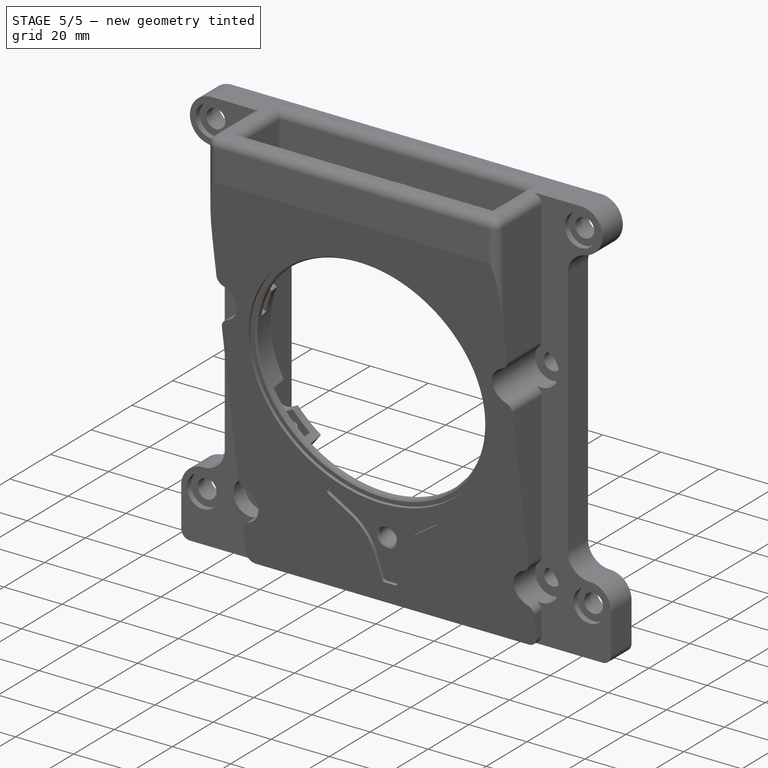
[diagram: stage 5 of 5 — iso view after this stage's code; geometry added in this stage tinted green]
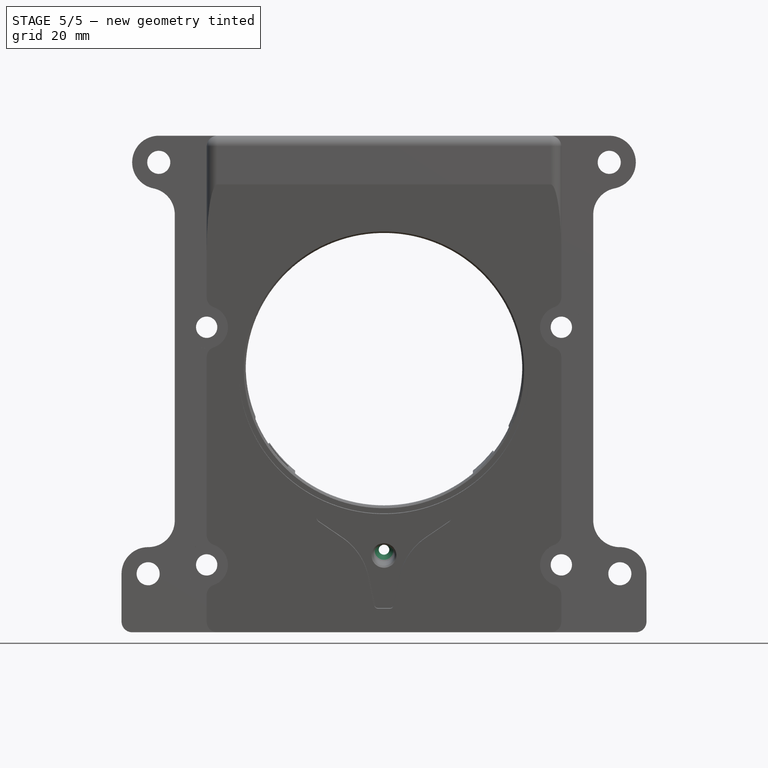
[diagram: stage 5 of 5 — front view after this stage's code; geometry added in this stage tinted green]
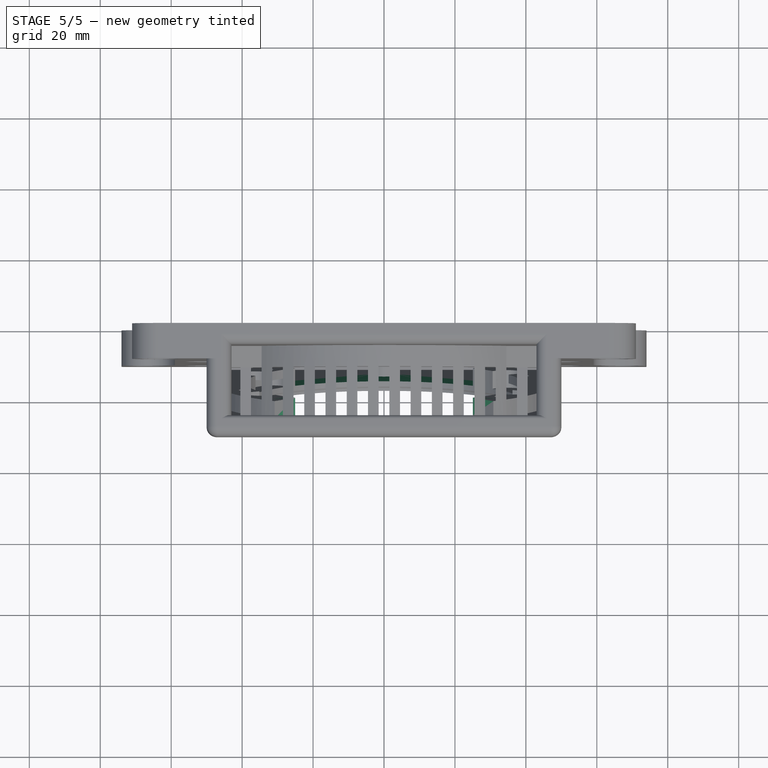
[diagram: stage 5 of 5 — top view after this stage's code; geometry added in this stage tinted green]
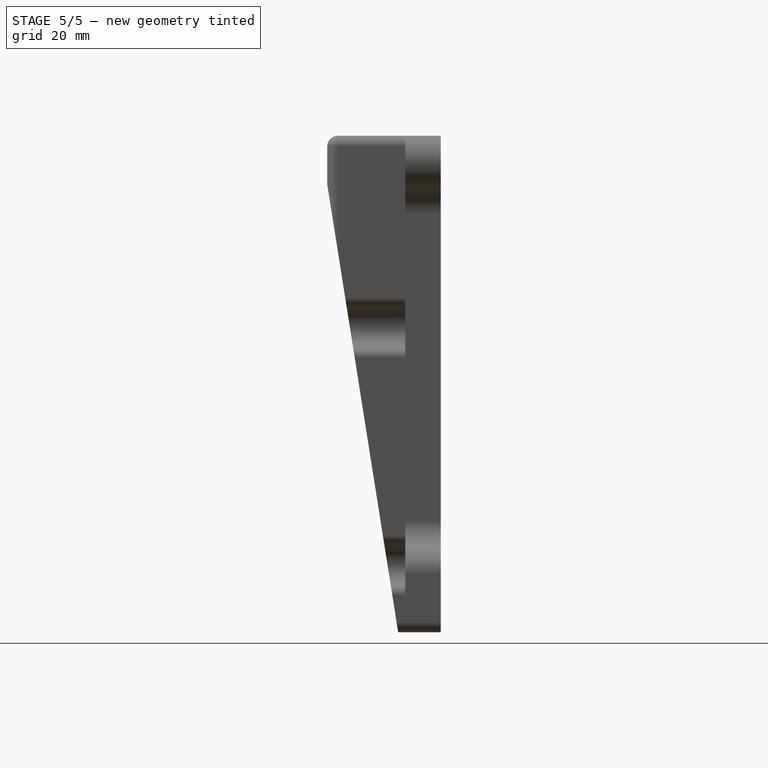
[diagram: stage 5 of 5 — right view after this stage's code; geometry added in this stage tinted green]
FEATURE [Sketcher::SketchObject] Sketch033
  ArcFitTolerance = 1e-06
  AttachmentSupport = -> [Pocket018]
  ExternalGeometry = -> [Pocket018]
  FullyConstrained = true
  MakeInternals = false
  MapMode = 5
  Placement = pos=(0,-14.6204,-2.31565) rot=(-1,0,0;1.41372rad)
  sketch-geometry (4):
    g0: ArcOfCircle CenterX=0 CenterY=-7.5 CenterZ=0 NormalX=0 NormalY=0 NormalZ=1 AngleXU=0 Radius=39 StartAngle=0.872665 EndAngle=2.26893
    g1: ArcOfCircle CenterX=0 CenterY=-7.5 CenterZ=0 NormalX=0 NormalY=0 NormalZ=1 AngleXU=0 Radius=48 StartAngle=0.872665 EndAngle=2.26893
    g2: LineSegment StartX=-30.8538 StartY=29.2701 StartZ=0 EndX=-25.0687 EndY=22.3757 EndZ=0
    g3: LineSegment StartX=25.0687 StartY=22.3757 StartZ=0 EndX=30.8538 EndY=29.2701 EndZ=0
  constraints (12):
    c: Coincident(g2,g1)
    c: Coincident(g2,g0)
    c: Coincident(g3,g0)
    c: Coincident(g3,g1)
    c: PointOnObject(g1,g-3)
    c: PointOnObject(g0,g-4)
    c: Coincident(g0,g-4)
    c: Coincident(g1,g0)
    c: PointOnObject(g0,g2)
    c: PointOnObject(g0,g3)
    c: Angle(g3,g2) = 1.39626
    c: Angle(g-2,g2) = 0.698132
FEATURE [PartDesign::Pocket] Pocket019
  BaseFeature = -> Pocket018
  Direction = (0,-0.987688,-0.156434)
  Length = 0
  Length2 = 5
  Placement = pos=(0,0,0) rot=(1,0,0;1.5708rad)
  Profile = -> Sketch033
  ReferenceAxis = -> Sketch033 [N_Axis]
  Refine = true
  Suppressed = false
  Type = 3
  UpToFace = -> Pocket018 [Face57]
FEATURE [Sketcher::SketchObject] Sketch034
  ArcFitTolerance = 1e-06
  AttachmentSupport = -> [Pocket019]
  ExternalGeometry = -> [Pocket019]
  FullyConstrained = true
  MakeInternals = false
  MapMode = 5
  Placement = pos=(0,-11.6574,-1.84634) rot=(-1,0,0;1.41372rad)
  sketch-geometry (1):
    g0: Circle CenterX=0 CenterY=45.5 CenterZ=0 NormalX=0 NormalY=0 NormalZ=1 AngleXU=0 Radius=4.5
  constraints (2):
    c: Coincident(g0,g-3)
    c: Equal(g0,g-3)
FEATURE [PartDesign::Pad] Pad006
  BaseFeature = -> Pocket019
  Direction = (0,0.987688,0.156434)
  Length = 1
  Length2 = 10
  Placement = pos=(0,0,0) rot=(1,0,0;1.5708rad)
  Profile = -> Sketch034
  ReferenceAxis = -> Sketch034 [N_Axis]
  Refine = true
  Suppressed = false
  Type = 0
FEATURE [PartDesign::Chamfer] Chamfer
  Angle = 45
  Base = -> Pad006 [Edge692]
  BaseFeature = -> Pad006
  ChamferType = 0
  FlipDirection = false
  Placement = pos=(0,0,0) rot=(1,0,0;1.5708rad)
  Refine = true
  Size = 1.5
  Size2 = 1
  SupportTransform = false
  Suppressed = false
  UseAllEdges = false
FEATURE [Sketcher::SketchObject] Sketch035
  ArcFitTolerance = 1e-06
  AttachmentSupport = -> [Chamfer]
  ExternalGeometry = -> [Chamfer]
  FullyConstrained = true
  MakeInternals = false
  MapMode = 5
  Placement = pos=(0,-11.6574,-1.84634) rot=(1,0,0;1.72788rad)
  sketch-geometry (1):
    g0: Circle CenterX=0 CenterY=-45.5 CenterZ=0 NormalX=0 NormalY=0 NormalZ=1 AngleXU=0 Radius=1.5
  constraints (2):
    c: Coincident(g0,g-3)
    c: Equal(g0,g-3)
FEATURE [PartDesign::Pocket] Pocket020
  BaseFeature = -> Chamfer
  Direction = (0,0.987688,0.156434)
  Length = 5
  Length2 = 5
  Placement = pos=(0,0,0) rot=(1,0,0;1.5708rad)
  Profile = -> Sketch035
  ReferenceAxis = -> Sketch035 [N_Axis]
  Refine = true
  Suppressed = false
  Type = 1
FEATURE [PartDesign::Chamfer] Chamfer001
  Angle = 45
  Base = -> Pocket020 [Edge3]
  BaseFeature = -> Pocket020
  ChamferType = 0
  FlipDirection = false
  Placement = pos=(0,0,0) rot=(1,0,0;1.5708rad)
  Refine = true
  Size = 0.5
  Size2 = 1
  SupportTransform = false
  Suppressed = false
  UseAllEdges = false
FEATURE [PartDesign::Chamfer] Chamfer002
  Angle = 45
  Base = -> Chamfer001 [Edge236]
  BaseFeature = -> Chamfer001
  ChamferType = 0
  FlipDirection = false
  Placement = pos=(0,0,0) rot=(1,0,0;1.5708rad)
  Refine = true
  Size = 0.5
  Size2 = 1
  SupportTransform = false
  Suppressed = false
  UseAllEdges = false
FEATURE [Sketcher::SketchObject] Sketch036
  ArcFitTolerance = 1e-06
  AttachmentSupport = -> [Chamfer001]
  ExternalGeometry = -> [Chamfer001]
  FullyConstrained = true
  MakeInternals = false
  MapMode = 5
  Placement = pos=(0,-14.6204,-2.31565) rot=(-1,0,0;1.41372rad)
  sketch-geometry (3):
    g0: ArcOfCircle CenterX=0 CenterY=-7.5 CenterZ=0 NormalX=0 NormalY=0 NormalZ=1 AngleXU=0 Radius=45 StartAngle=3.66519 EndAngle=5.75959
    g1: LineSegment StartX=-38.9711 StartY=-30 StartZ=0 EndX=0 EndY=-7.5 EndZ=0
    g2: LineSegment StartX=38.9711 StartY=-30 StartZ=0 EndX=0 EndY=-7.5 EndZ=0
  constraints (8):
    c: Coincident(g0,g-3)
    c: Coincident(g1,g0)
    c: Coincident(g1,g0)
    c: Coincident(g2,g0)
    c: Coincident(g2,g0)
    c: Angle(g1,g2) = 2.0944
    c: Angle(g1,g-2) = 1.0472
    c: Distance(g-3,g0) = 6
FEATURE [PartDesign::Pocket] Pocket021
  BaseFeature = -> Chamfer002
  Direction = (0,-0.987688,-0.156434)
  Length = 5
  Length2 = 5
  Placement = pos=(0,0,0) rot=(1,0,0;1.5708rad)
  Profile = -> Sketch036
  ReferenceAxis = -> Sketch036 [N_Axis]
  Refine = true
  Reversed = true
  Suppressed = false
  Type = 1
FEATURE [Sketcher::SketchObject] Sketch037
  ArcFitTolerance = 1e-06
  AttachmentSupport = -> [Pocket021]
  ExternalGeometry = -> [Pocket021]
  FullyConstrained = true
  MakeInternals = false
  MapMode = 5
  Placement = pos=(7.7e-15,-14.6204,-2.31565) rot=(-1,0,0;1.41372rad)
  sketch-geometry (4):
    g0: ArcOfCircle CenterX=-7.3e-15 CenterY=-7.5 CenterZ=0 NormalX=0 NormalY=0 NormalZ=1 AngleXU=0 Radius=39 StartAngle=4.01426 EndAngle=5.41052
    g1: ArcOfCircle CenterX=-7.3e-15 CenterY=-7.5 CenterZ=0 NormalX=0 NormalY=0 NormalZ=1 AngleXU=0 Radius=45 StartAngle=4.01426 EndAngle=5.41052
    g2: LineSegment StartX=-28.9254 StartY=-41.972 StartZ=0 EndX=-25.0687 EndY=-37.3757 EndZ=0
    g3: LineSegment StartX=28.9254 StartY=-41.972 StartZ=0 EndX=25.0687 EndY=-37.3757 EndZ=0
  constraints (12):
    c: Coincident(g2,g1)
    c: Coincident(g2,g0)
    c: Coincident(g3,g1)
    c: Coincident(g3,g0)
    c: Coincident(g1,g-4)
    c: Coincident(g0,g1)
    c: Angle(g2,g3) = 1.39626
    c: Angle(g2,g-2) = 0.698132
    c: PointOnObject(g-5,g1)
    c: Tangent(g0,g-3)
    c: PointOnObject(g0,g2)
    c: PointOnObject(g0,g3)
FEATURE [PartDesign::Pocket] Pocket022
  BaseFeature = -> Pocket021
  Direction = (0,-0.987688,-0.156434)
  Length = 0
  Length2 = 5
  Placement = pos=(0,0,0) rot=(1,0,0;1.5708rad)
  Profile = -> Sketch037
  ReferenceAxis = -> Sketch037 [N_Axis]
  Refine = true
  Suppressed = false
  Type = 3
  UpToFace = -> Pocket021 [Face12]
FEATURE [PartDesign::Body] Body  label="Stack_Module_Cover_forinsert001"
  AllowCompound = false
  Group = -> [Sketch,Pad,Fillet,Sketch001,Pad001,Sketch002,Sketch003,Pocket,Sketch004,Pocket001,Sketch005,Pocket002,Sketch006,Pad002,LinearPattern,Sketch007,Pocket003,Sketch008,Pocket004,Sketch009,Pocket005,Sketch010,Pocket006,Fillet001,Fillet002,Fillet003,Fillet004,Fillet005,Pocket007,Mirrored,Sketch014,Sketch015,Pocket012,Sketch016,Pad003,Sketch017,Pocket013,LinearPattern001,Sketch019,Pocket014,Sketch020,+30 more]
  Origin = -> Origin001
  Tip = -> Pocket022
FEATURE [PartDesign::CoordinateSystem] tee_att
  AttacherType = Attacher::AttachEngine3D
  AttachmentSupport = -> [Pocket022]
  MapMode = 11
  Placement = pos=(0,-14.4165,-48.3505) rot=(-0.544663,0.544663,0.637718;2.00621rad)
FEATURE [PartDesign::CoordinateSystem] Logo_att
  AttacherType = Attacher::AttachEngine3D
  AttachmentSupport = -> [Pocket022]
  MapMode = 11
  Placement = pos=(0,-22.7075,3.99697) rot=(-0.544663,0.544663,0.637718;2.00621rad)
FEATURE [PartDesign::CoordinateSystem] sleevenut_att1
  AttacherType = Attacher::AttachEngine3D
  AttachmentSupport = -> [Pocket022]
  MapMode = 11
  Placement = pos=(66.5,-8,-53.5) rot=(0.57735,-0.57735,0.57735;2.0944rad)
FEATURE [PartDesign::CoordinateSystem] sleevenut_att2
  AttacherType = Attacher::AttachEngine3D
  AttachmentSupport = -> [Pocket022]
  MapMode = 11
  Placement = pos=(63.5,-8,62.5) rot=(0.57735,-0.57735,0.57735;2.0944rad)
FEATURE [PartDesign::CoordinateSystem] sleevenut_att3
  AttacherType = Attacher::AttachEngine3D
  AttachmentSupport = -> [Pocket022]
  MapMode = 11
  Placement = pos=(-63.5,-8,62.5) rot=(0.57735,0.57735,0.57735;4.18879rad)
FEATURE [PartDesign::CoordinateSystem] sleevenut_att4
  AttacherType = Attacher::AttachEngine3D
  AttachmentSupport = -> [Pocket022]
  MapMode = 11
  Placement = pos=(-66.5,-8,-53.5) rot=(0.57735,0.57735,0.57735;4.18879rad)
FEATURE [PartDesign::CoordinateSystem] stack_att
  AttacherType = Attacher::AttachEngine3D
  AttachmentSupport = -> [Pocket022]
  MapMode = 11
  Placement = pos=(-63.5,1.41e-14,62.5) rot=(0.57735,0.57735,-0.57735;2.0944rad)
FEATURE [App::Part] Part  label="Stack_Module_Cover_twoInserts"
  Group = -> [Body,tee_att,Logo_att,sleevenut_att1,sleevenut_att2,sleevenut_att3,sleevenut_att4,stack_att]
  Origin = -> Origin
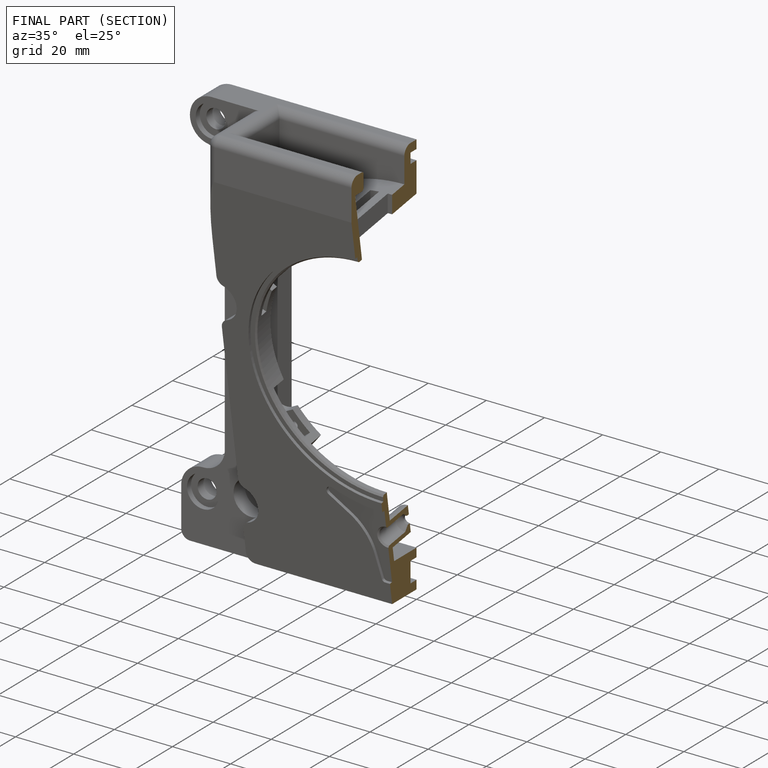
[diagram: finished part — half-section view (interior)]
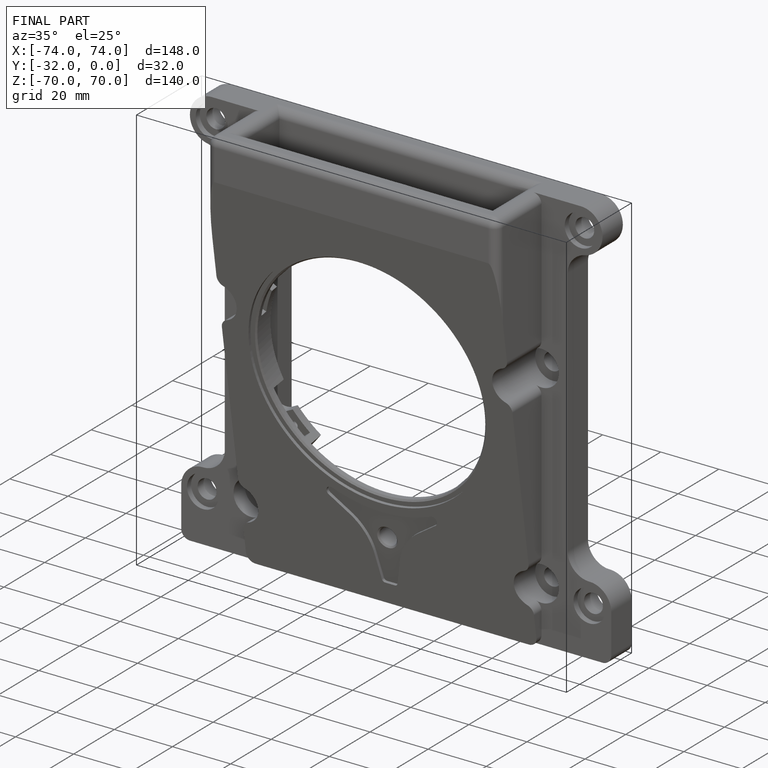
[diagram: finished part — iso view with bounding-box wireframe]
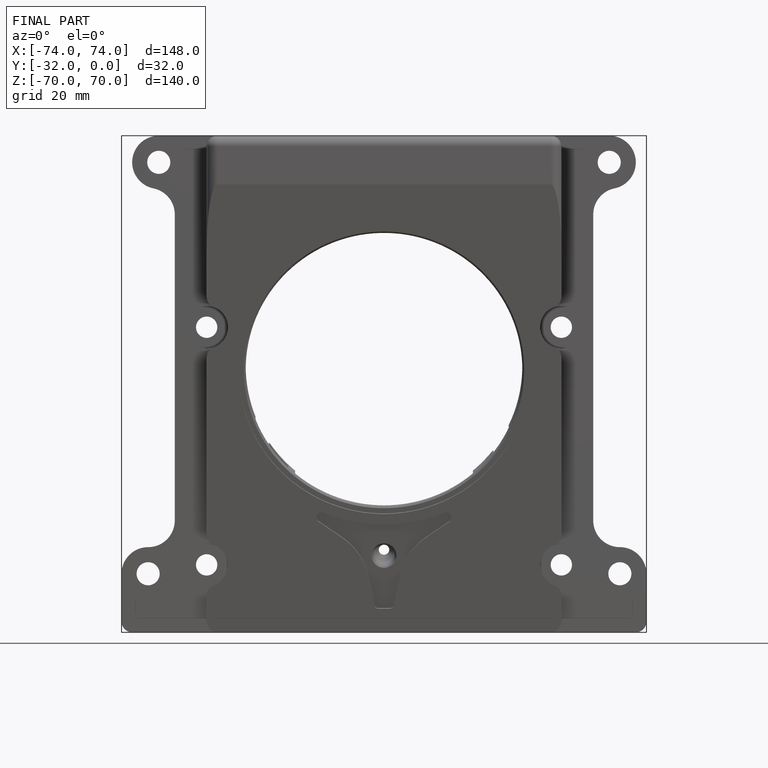
[diagram: finished part — front view with bounding-box wireframe]
